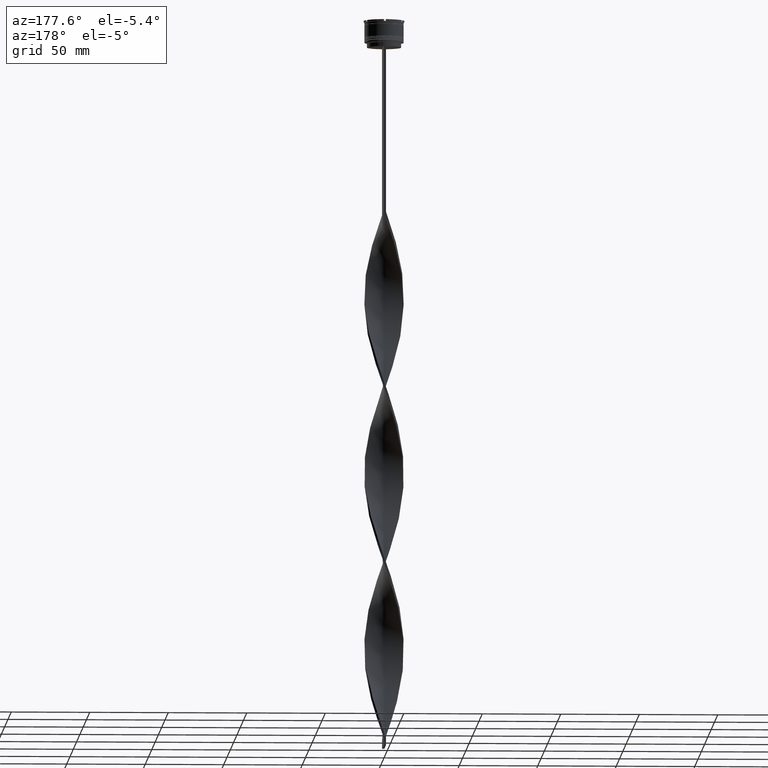
[diagram: clean part render]
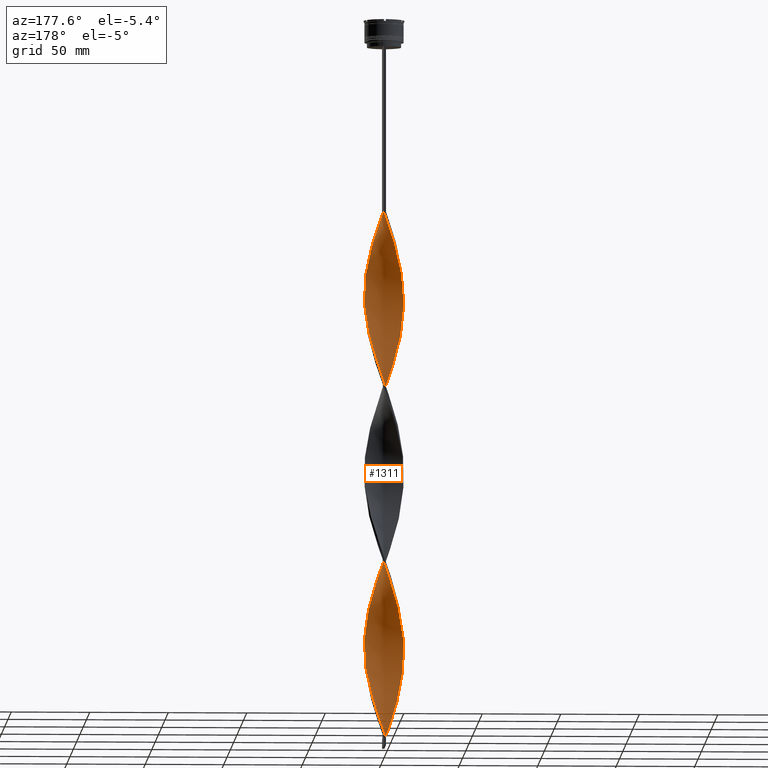
[diagram: same view with one face highlighted and labeled with its STEP entity id]
A machine part, auxiliary view. The second image highlights one B-rep face of the part: STEP entity #1311.
In plain terms, the highlighted face is a freeform B-spline surface patch.
Its self-contained STEP definition (entity closure, byte-faithful):
#4 = CARTESIAN_POINT ( 'NONE',  ( 5.345974020927156012, 11.35936647350535367, -217.1818181818181586 ) ) ;
#23 = CARTESIAN_POINT ( 'NONE',  ( 11.68196120168289553, -4.510463666007692218, -163.7272727272727195 ) ) ;
#50 = CARTESIAN_POINT ( 'NONE',  ( 12.26603189480669798, 2.521301559826762517, -184.0909090909090935 ) ) ;
#63 = CARTESIAN_POINT ( 'NONE',  ( -2.521301559826764294, -12.26603189480669442, -229.9090909090909065 ) ) ;
#78 = CARTESIAN_POINT ( 'NONE',  ( -4.241276690728744470, -11.78236275255014576, -448.8181818181818130 ) ) ;
#86 = CARTESIAN_POINT ( 'NONE',  ( 0.1440176444849607940, -12.55364105866909874, -237.5454545454545325 ) ) ;
#87 = CARTESIAN_POINT ( 'NONE',  ( -0.1440176444849628479, 12.55364105866909874, -125.5454545454545467 ) ) ;
#100 = CARTESIAN_POINT ( 'NONE',  ( 11.68196120168289553, -4.510463666007692218, -387.7272727272727479 ) ) ;
#107 = CARTESIAN_POINT ( 'NONE',  ( 8.752571355081757432, -8.955724128969265507, -148.4545454545454390 ) ) ;
#108 = CARTESIAN_POINT ( 'NONE',  ( -12.00455592986043030, -3.674953311088229313, -191.7272727272727479 ) ) ;
#117 = CARTESIAN_POINT ( 'NONE',  ( -1.929121149525772960, -12.40536724576414684, -339.3636363636362603 ) ) ;
#130 = CARTESIAN_POINT ( 'NONE',  ( 1.929121149525765855, 12.40536724576414862, -227.3636363636363455 ) ) ;
#132 = CARTESIAN_POINT ( 'NONE',  ( -5.874911659039468326, -11.05883868218006505, -219.7272727272727195 ) ) ;
#149 = CARTESIAN_POINT ( 'NONE',  ( -12.00455592986042852, 3.674953311088234642, -278.2727272727271952 ) ) ;
#159 = CARTESIAN_POINT ( 'NONE',  ( 9.581720387053804799, 8.112045323846697187, -201.9090909090909065 ) ) ;
#160 = CARTESIAN_POINT ( 'NONE',  ( -1.929121149525765855, 12.40536724576414862, -130.6363636363636545 ) ) ;
#161 = CARTESIAN_POINT ( 'NONE',  ( -6.908166116216011510, 10.48293307345756809, -145.9090909090909065 ) ) ;
#171 = CARTESIAN_POINT ( 'NONE',  ( -11.47902065681779860, -5.083967906288925143, -303.7272727272727479 ) ) ;
#178 = CARTESIAN_POINT ( 'NONE',  ( -2.802037230306999582, -12.20496158781229035, -336.8181818181818130 ) ) ;
#179 = CARTESIAN_POINT ( 'NONE',  ( -11.68196120168289553, -4.510463666007690442, -418.2727272727273089 ) ) ;
#180 = CARTESIAN_POINT ( 'NONE',  ( 2.521301559826766070, 12.26603189480669442, -341.9090909090909349 ) ) ;
#193 = CARTESIAN_POINT ( 'NONE',  ( 6.665855411790015062, -10.63865670754232795, -364.8181818181818130 ) ) ;
#202 = CARTESIAN_POINT ( 'NONE',  ( 0.1440176444849638193, 12.55364105866909874, -232.4545454545454390 ) ) ;
#203 = CARTESIAN_POINT ( 'NONE',  ( 11.05883868218006505, -5.874911659039469214, -275.7272727272726911 ) ) ;
#206 = CARTESIAN_POINT ( 'NONE',  ( -9.393097386316819453, -8.329727870884724439, -207.0000000000000284 ) ) ;
#217 = EDGE_CURVE ( 'NONE', #3890, #3883, #2850, .T. ) ;
#230 = CARTESIAN_POINT ( 'NONE',  ( -12.44635894133090126, -1.644017644484965901, -293.5454545454545041 ) ) ;
#231 = CARTESIAN_POINT ( 'NONE',  ( -12.26603189480669442, 2.521301559826763850, -397.9090909090909349 ) ) ;
#232 = CARTESIAN_POINT ( 'NONE',  ( -0.1440176444849628479, 12.55364105866909874, -349.5454545454545610 ) ) ;
#252 = CARTESIAN_POINT ( 'NONE',  ( 2.802037230306994253, -12.20496158781229035, -245.1818181818181870 ) ) ;
#272 = CARTESIAN_POINT ( 'NONE',  ( 6.665855411790017726, 10.63865670754232440, -329.1818181818181301 ) ) ;
#285 = CARTESIAN_POINT ( 'NONE',  ( 7.618946993550371971, 9.938015229887190216, -433.5454545454545610 ) ) ;
#294 = CARTESIAN_POINT ( 'NONE',  ( 2.521301559826763850, -12.26603189480669442, -352.0909090909091219 ) ) ;
#295 = CARTESIAN_POINT ( 'NONE',  ( -6.127070068571584649, 10.92114977348146354, -367.3636363636363740 ) ) ;
#304 = CARTESIAN_POINT ( 'NONE',  ( 10.48293307345756809, -6.908166116216013286, -156.0909090909090935 ) ) ;
#311 = CARTESIAN_POINT ( 'NONE',  ( 0.7500000000000002220, 12.50000000000000000, -347.0000000000000000 ) ) ;
#314 = CARTESIAN_POINT ( 'NONE',  ( 8.752571355081757432, -8.955724128969265507, -372.4545454545454959 ) ) ;
#317 = CARTESIAN_POINT ( 'NONE',  ( -5.874911659039468326, -11.05883868218006505, -443.7272727272727479 ) ) ;
#336 = CARTESIAN_POINT ( 'NONE',  ( 9.938015229887190216, 7.618946993550371971, -316.4545454545454390 ) ) ;
#340 = CARTESIAN_POINT ( 'NONE',  ( 7.618946993550371971, 9.938015229887190216, -433.5454545454545610 ) ) ;
#341 = CARTESIAN_POINT ( 'NONE',  ( -3.674953311088230201, 12.00455592986043030, -359.7272727272726911 ) ) ;
#364 = CARTESIAN_POINT ( 'NONE',  ( 8.329727870884726215, 9.393097386316817676, -207.0000000000000284 ) ) ;
#371 = CARTESIAN_POINT ( 'NONE',  ( -11.47902065681779860, 5.083967906288926031, -390.2727272727272521 ) ) ;
#385 = CARTESIAN_POINT ( 'NONE',  ( -6.665855411790016838, -10.63865670754232440, -441.1818181818181301 ) ) ;
#405 = CARTESIAN_POINT ( 'NONE',  ( 7.388950367818355680, -10.11018854729806726, -143.3636363636363740 ) ) ;
#415 = CARTESIAN_POINT ( 'NONE',  ( -3.674953311088230201, 12.00455592986043030, -135.7272727272726911 ) ) ;
#430 = CARTESIAN_POINT ( 'NONE',  ( 4.510463666007690442, 11.68196120168289553, -219.7272727272727195 ) ) ;
#444 = CARTESIAN_POINT ( 'NONE',  ( -12.40536724576414862, -1.929121149525766965, -186.6363636363636260 ) ) ;
#457 = CARTESIAN_POINT ( 'NONE',  ( 12.08570484828248759, 3.398585475168564685, -186.6363636363636260 ) ) ;
#466 = CARTESIAN_POINT ( 'NONE',  ( -5.083967906288923366, -11.47902065681780037, -222.2727272727272805 ) ) ;
#467 = CARTESIAN_POINT ( 'NONE',  ( -4.510463666007691330, 11.68196120168289553, -138.2727272727272805 ) ) ;
#478 = CARTESIAN_POINT ( 'NONE',  ( -0.1440176444849599058, -12.55364105866909874, -344.4545454545453254 ) ) ;
#485 = CARTESIAN_POINT ( 'NONE',  ( -9.581720387053806576, -8.112045323846695410, -313.9090909090908781 ) ) ;
#486 = CARTESIAN_POINT ( 'NONE',  ( -8.752571355081759208, -8.955724128969263731, -209.5454545454545325 ) ) ;
#499 = CARTESIAN_POINT ( 'NONE',  ( -8.329727870884727992, -9.393097386316815900, -319.0000000000000000 ) ) ;
#506 = B_SPLINE_CURVE_WITH_KNOTS ( 'NONE', 3,
 ( #3941, #2571, #4292, #1451 ),
 .UNSPECIFIED., .F., .F.,
 ( 4, 4 ),
 ( 0.000000000000000000, 1.000000000000000000 ),
 .UNSPECIFIED. ) ;
#511 = CARTESIAN_POINT ( 'NONE',  ( -10.63865670754232795, -6.665855411790014173, -308.8181818181817562 ) ) ;
#513 = CARTESIAN_POINT ( 'NONE',  ( 4.510463666007693107, -11.68196120168289553, -250.2727272727273089 ) ) ;
#529 = CARTESIAN_POINT ( 'NONE',  ( -9.581720387053806576, -8.112045323846697187, -313.9090909090908212 ) ) ;
#540 = CARTESIAN_POINT ( 'NONE',  ( -4.510463666007692218, -11.68196120168289553, -331.7272727272727479 ) ) ;
#541 = CARTESIAN_POINT ( 'NONE',  ( 3.398585475168570902, 12.08570484828248581, -339.3636363636362603 ) ) ;
#542 = CARTESIAN_POINT ( 'NONE',  ( -10.63865670754232795, 6.665855411790015062, -161.1818181818181870 ) ) ;
#552 = CARTESIAN_POINT ( 'NONE',  ( -12.20496158781229035, 2.802037230306998694, -280.8181818181818699 ) ) ;
#560 = CARTESIAN_POINT ( 'NONE',  ( 3.674953311088228425, 12.00455592986043207, -222.2727272727272805 ) ) ;
#561 = CARTESIAN_POINT ( 'NONE',  ( -8.329727870884726215, 9.393097386316819453, -374.9999999999999432 ) ) ;
#563 = CARTESIAN_POINT ( 'NONE',  ( 9.938015229887190216, 7.618946993550371971, -316.4545454545454390 ) ) ;
#572 = CARTESIAN_POINT ( 'NONE',  ( 3.398585475168563796, -12.08570484828248759, -354.6363636363635692 ) ) ;
#583 = CARTESIAN_POINT ( 'NONE',  ( -12.20496158781229035, 2.802037230306998694, -280.8181818181818699 ) ) ;
#584 = CARTESIAN_POINT ( 'NONE',  ( 10.92114977348146709, 6.127070068571577544, -311.3636363636363740 ) ) ;
#589 = CARTESIAN_POINT ( 'NONE',  ( 8.752571355081753879, 8.955724128969267284, -321.5454545454545610 ) ) ;
#611 = CARTESIAN_POINT ( 'NONE',  ( 4.510463666007693107, -11.68196120168289553, -250.2727272727273089 ) ) ;
#621 = CARTESIAN_POINT ( 'NONE',  ( 10.63865670754232617, 6.665855411790015950, -420.8181818181818130 ) ) ;
#628 = CARTESIAN_POINT ( 'NONE',  ( 12.44635894133090126, 1.644017644484961904, -405.5454545454545610 ) ) ;
#629 = CARTESIAN_POINT ( 'NONE',  ( 11.05883868218006505, -5.874911659039469214, -275.7272727272726911 ) ) ;
#648 = CARTESIAN_POINT ( 'NONE',  ( 10.11018854729806549, 7.388950367818355680, -423.3636363636363740 ) ) ;
#650 = CARTESIAN_POINT ( 'NONE',  ( 11.68196120168289731, 4.510463666007686889, -306.2727272727272521 ) ) ;
#661 = CARTESIAN_POINT ( 'NONE',  ( 9.938015229887191992, -7.618946993550370195, -153.5454545454545325 ) ) ;
#670 = CARTESIAN_POINT ( 'NONE',  ( -9.581720387053804799, 8.112045323846698963, -380.0909090909090651 ) ) ;
#677 = CARTESIAN_POINT ( 'NONE',  ( -0.7499999999999986677, 12.50000000000000000, -459.0000000000000000 ) ) ;
#679 = CARTESIAN_POINT ( 'NONE',  ( -4.241276690728744470, -11.78236275255014576, -448.8181818181818130 ) ) ;
#687 = CARTESIAN_POINT ( 'NONE',  ( 12.00455592986043030, -3.674953311088231089, -166.2727272727272521 ) ) ;
#693 = CARTESIAN_POINT ( 'NONE',  ( 5.083967906288930472, 11.47902065681779682, -334.2727272727272521 ) ) ;
#696 = CARTESIAN_POINT ( 'NONE',  ( 4.510463666007690442, 11.68196120168289553, -443.7272727272727479 ) ) ;
#699 = CARTESIAN_POINT ( 'NONE',  ( -12.20496158781229035, -2.802037230306997806, -413.1818181818181870 ) ) ;
#715 = CARTESIAN_POINT ( 'NONE',  ( 10.63865670754232617, 6.665855411790015950, -196.8181818181817846 ) ) ;
#722 = CARTESIAN_POINT ( 'NONE',  ( -9.581720387053804799, 8.112045323846697187, -380.0909090909090651 ) ) ;
#742 = CARTESIAN_POINT ( 'NONE',  ( -2.521301559826764294, -12.26603189480669442, -453.9090909090909349 ) ) ;
#768 = CARTESIAN_POINT ( 'NONE',  ( 5.083967906288925143, -11.47902065681779860, -135.7272727272726911 ) ) ;
#775 = CARTESIAN_POINT ( 'NONE',  ( 6.908166116216011510, -10.48293307345756986, -257.9090909090909349 ) ) ;
#788 = CARTESIAN_POINT ( 'NONE',  ( -0.7499999999999986677, 12.50000000000000000, -235.0000000000000000 ) ) ;
#797 = CARTESIAN_POINT ( 'NONE',  ( -9.581720387053804799, 8.112045323846698963, -156.0909090909090935 ) ) ;
#811 = CARTESIAN_POINT ( 'NONE',  ( 12.20496158781229035, -2.802037230306999582, -168.8181818181818130 ) ) ;
#824 = CARTESIAN_POINT ( 'NONE',  ( -10.63865670754232795, 6.665855411790015950, -161.1818181818181870 ) ) ;
#825 = CARTESIAN_POINT ( 'NONE',  ( -11.78236275255014576, 4.241276690728745358, -168.8181818181818130 ) ) ;
#836 = CARTESIAN_POINT ( 'NONE',  ( -2.802037230306999582, -12.20496158781229035, -336.8181818181818130 ) ) ;
#843 = CARTESIAN_POINT ( 'NONE',  ( -11.05883868218006683, -5.874911659039464773, -306.2727272727272521 ) ) ;
#844 = CARTESIAN_POINT ( 'NONE',  ( -12.50000000000000000, 0.7500000000000009992, -179.0000000000000000 ) ) ;
#857 = CARTESIAN_POINT ( 'NONE',  ( 11.78236275255014576, 4.241276690728744470, -413.1818181818181870 ) ) ;
#864 = CARTESIAN_POINT ( 'NONE',  ( -10.92114977348146532, 6.127070068571582873, -270.6363636363636829 ) ) ;
#865 = CARTESIAN_POINT ( 'NONE',  ( -3.398585475168563796, -12.08570484828248759, -227.3636363636363171 ) ) ;
#875 = ORIENTED_EDGE ( 'NONE', *, *, #217, .F. ) ;
#879 = CARTESIAN_POINT ( 'NONE',  ( -10.92114977348146532, 6.127070068571582873, -270.6363636363636829 ) ) ;
#889 = CARTESIAN_POINT ( 'NONE',  ( -6.908166116216016839, -10.48293307345756453, -324.0909090909090651 ) ) ;
#891 = CARTESIAN_POINT ( 'NONE',  ( 10.11018854729806904, -7.388950367818353904, -270.6363636363636829 ) ) ;
#892 = CARTESIAN_POINT ( 'NONE',  ( -8.955724128969265507, 8.752571355081757432, -153.5454545454545325 ) ) ;
#906 = CARTESIAN_POINT ( 'NONE',  ( -11.68196120168289553, 4.510463666007691330, -275.7272727272726911 ) ) ;
#907 = EDGE_CURVE ( 'NONE', #3890, #1246, #1615, .T. ) ;
#916 = CARTESIAN_POINT ( 'NONE',  ( 8.955724128969265507, 8.752571355081755655, -204.4545454545454390 ) ) ;
#917 = CARTESIAN_POINT ( 'NONE',  ( 10.63865670754232440, -6.665855411790017726, -273.1818181818181870 ) ) ;
#918 = CARTESIAN_POINT ( 'NONE',  ( 8.329727870884724439, -9.393097386316819453, -262.9999999999999432 ) ) ;
#926 = CARTESIAN_POINT ( 'NONE',  ( 8.112045323846697187, -9.581720387053804799, -369.9090909090908781 ) ) ;
#935 = CARTESIAN_POINT ( 'NONE',  ( -3.398585475168561576, 12.08570484828248759, -242.6363636363636260 ) ) ;
#936 = CARTESIAN_POINT ( 'NONE',  ( -8.955724128969265507, 8.752571355081757432, -377.5454545454545610 ) ) ;
#937 = CARTESIAN_POINT ( 'NONE',  ( 10.11018854729806904, -7.388950367818353904, -270.6363636363636829 ) ) ;
#956 = CARTESIAN_POINT ( 'NONE',  ( 6.127070068571586425, 10.92114977348146354, -438.6363636363636829 ) ) ;
#959 = CARTESIAN_POINT ( 'NONE',  ( -7.388950367818358345, -10.11018854729806549, -214.6363636363636260 ) ) ;
#982 = CARTESIAN_POINT ( 'NONE',  ( 5.083967906288925143, -11.47902065681779860, -359.7272727272726911 ) ) ;
#983 = CARTESIAN_POINT ( 'NONE',  ( 4.241276690728745358, 11.78236275255014576, -336.8181818181818130 ) ) ;
#1002 = CARTESIAN_POINT ( 'NONE',  ( 2.802037230306997806, 12.20496158781229035, -448.8181818181818130 ) ) ;
#1004 = CARTESIAN_POINT ( 'NONE',  ( 1.929121149525763412, -12.40536724576414862, -242.6363636363636260 ) ) ;
#1013 = CARTESIAN_POINT ( 'NONE',  ( 1.036569397005364879, 12.47950415221662368, -453.9090909090909349 ) ) ;
#1020 = CARTESIAN_POINT ( 'NONE',  ( 2.521301559826766070, 12.26603189480669442, -341.9090909090909349 ) ) ;
#1024 = CARTESIAN_POINT ( 'NONE',  ( 11.35936647350535722, -5.345974020927153347, -385.1818181818181301 ) ) ;
#1037 = CARTESIAN_POINT ( 'NONE',  ( 10.92114977348146354, -6.127070068571585537, -158.6363636363636260 ) ) ;
#1040 = CARTESIAN_POINT ( 'NONE',  ( 10.11018854729806549, 7.388950367818355680, -423.3636363636363740 ) ) ;
#1045 = CARTESIAN_POINT ( 'NONE',  ( -1.929121149525765855, 12.40536724576414862, -354.6363636363635692 ) ) ;
#1052 = CARTESIAN_POINT ( 'NONE',  ( -5.083967906288923366, -11.47902065681780037, -446.2727272727271952 ) ) ;
#1069 = CARTESIAN_POINT ( 'NONE',  ( -8.112045323846698963, -9.581720387053803023, -436.0909090909091219 ) ) ;
#1074 = CARTESIAN_POINT ( 'NONE',  ( -12.00455592986043030, -3.674953311088229313, -415.7272727272726911 ) ) ;
#1090 = CARTESIAN_POINT ( 'NONE',  ( 0.1440176444849638193, 12.55364105866909874, -232.4545454545454390 ) ) ;
#1095 = CARTESIAN_POINT ( 'NONE',  ( -11.68196120168289553, -4.510463666007690442, -418.2727272727273089 ) ) ;
#1114 = CARTESIAN_POINT ( 'NONE',  ( 0.7500000000000002220, -12.50000000000000000, -123.0000000000000000 ) ) ;
#1131 = VERTEX_POINT ( 'NONE', #2070 ) ;
#1136 = CARTESIAN_POINT ( 'NONE',  ( 0.7500000000000002220, -12.50000000000000000, -123.0000000000000000 ) ) ;
#1138 = CARTESIAN_POINT ( 'NONE',  ( 6.127070068571586425, 10.92114977348146354, -214.6363636363636260 ) ) ;
#1146 = CARTESIAN_POINT ( 'NONE',  ( -10.11018854729806549, 7.388950367818356568, -158.6363636363636260 ) ) ;
#1147 = CARTESIAN_POINT ( 'NONE',  ( -12.44635894133090126, 1.644017644484963236, -176.4545454545454390 ) ) ;
#1159 = CARTESIAN_POINT ( 'NONE',  ( -1.644017644484961016, 12.44635894133090126, -237.5454545454545325 ) ) ;
#1168 = CARTESIAN_POINT ( 'NONE',  ( 2.521301559826763850, -12.26603189480669442, -128.0909090909090935 ) ) ;
#1169 = CARTESIAN_POINT ( 'NONE',  ( -11.47902065681779860, 5.083967906288926031, -166.2727272727272236 ) ) ;
#1185 = CARTESIAN_POINT ( 'NONE',  ( 12.00455592986043030, -3.674953311088231089, -390.2727272727272521 ) ) ;
#1196 = CARTESIAN_POINT ( 'NONE',  ( -11.47902065681779860, -5.083967906288925143, -303.7272727272727479 ) ) ;
#1197 = CARTESIAN_POINT ( 'NONE',  ( -12.44635894133090126, 1.644017644484963236, -176.4545454545454390 ) ) ;
#1198 = CARTESIAN_POINT ( 'NONE',  ( -11.68196120168289553, -4.510463666007690442, -194.2727272727272521 ) ) ;
#1212 = CARTESIAN_POINT ( 'NONE',  ( -12.40536724576414684, 1.929121149525772072, -283.3636363636362603 ) ) ;
#1220 = CARTESIAN_POINT ( 'NONE',  ( 11.47902065681779860, 5.083967906288924254, -191.7272727272727479 ) ) ;
#1221 = CARTESIAN_POINT ( 'NONE',  ( -7.618946993550370195, 9.938015229887191992, -148.4545454545454390 ) ) ;
#1234 = CARTESIAN_POINT ( 'NONE',  ( -9.393097386316817676, 8.329727870884726215, -262.9999999999999432 ) ) ;
#1242 = CARTESIAN_POINT ( 'NONE',  ( -6.665855411790015062, 10.63865670754232795, -252.8181818181817846 ) ) ;
#1243 = CARTESIAN_POINT ( 'NONE',  ( -8.955724128969265507, 8.752571355081757432, -153.5454545454545325 ) ) ;
#1246 = VERTEX_POINT ( 'NONE', #3903 ) ;
#1257 = CARTESIAN_POINT ( 'NONE',  ( -8.752571355081755655, 8.955724128969267284, -260.4545454545454959 ) ) ;
#1270 = CARTESIAN_POINT ( 'NONE',  ( 5.345974020927156012, 11.35936647350535367, -217.1818181818181586 ) ) ;
#1272 = CARTESIAN_POINT ( 'NONE',  ( -6.908166116216011510, 10.48293307345756986, -369.9090909090908781 ) ) ;
#1273 = CARTESIAN_POINT ( 'NONE',  ( -1.644017644484964125, -12.44635894133090126, -232.4545454545454390 ) ) ;
#1284 = CARTESIAN_POINT ( 'NONE',  ( 5.083967906288925143, -11.47902065681779860, -359.7272727272726343 ) ) ;
#1293 = CARTESIAN_POINT ( 'NONE',  ( -8.112045323846695410, 9.581720387053804799, -257.9090909090909349 ) ) ;
#1294 = CARTESIAN_POINT ( 'NONE',  ( -4.510463666007691330, 11.68196120168289553, -362.2727272727273089 ) ) ;
#1297 = CARTESIAN_POINT ( 'NONE',  ( 1.644017644484960128, 12.44635894133090126, -344.4545454545453822 ) ) ;
#1305 = CARTESIAN_POINT ( 'NONE',  ( 3.674953311088228425, 12.00455592986043207, -446.2727272727271952 ) ) ;
#1311 = ADVANCED_FACE ( 'NONE', ( #1901 ), #3085, .T. ) ;
#1315 = CARTESIAN_POINT ( 'NONE',  ( 11.78236275255014576, -4.241276690728744470, -280.8181818181818699 ) ) ;
#1338 = CARTESIAN_POINT ( 'NONE',  ( 8.955724128969265507, 8.752571355081755655, -428.4545454545454959 ) ) ;
#1341 = CARTESIAN_POINT ( 'NONE',  ( -3.398585475168564241, -12.08570484828248759, -227.3636363636363455 ) ) ;
#1356 = CARTESIAN_POINT ( 'NONE',  ( 11.05883868218006505, 5.874911659039468326, -418.2727272727273089 ) ) ;
#1366 = CARTESIAN_POINT ( 'NONE',  ( -1.929121149525765855, 12.40536724576414862, -354.6363636363635692 ) ) ;
#1384 = CARTESIAN_POINT ( 'NONE',  ( 8.752571355081753879, 8.955724128969267284, -321.5454545454545610 ) ) ;
#1387 = CARTESIAN_POINT ( 'NONE',  ( 3.398585475168564241, -12.08570484828248759, -354.6363636363635692 ) ) ;
#1388 = CARTESIAN_POINT ( 'NONE',  ( -0.7500000000000017764, -12.50000000000000000, -459.0000000000000000 ) ) ;
#1399 = CARTESIAN_POINT ( 'NONE',  ( 5.345974020927156012, 11.35936647350535367, -441.1818181818181301 ) ) ;
#1403 = CARTESIAN_POINT ( 'NONE',  ( 1.644017644484960128, 12.44635894133090126, -344.4545454545453254 ) ) ;
#1408 = CARTESIAN_POINT ( 'NONE',  ( -12.08570484828248759, 3.398585475168563352, -395.3636363636363171 ) ) ;
#1418 = CARTESIAN_POINT ( 'NONE',  ( 12.55364105866909874, -0.1440176444849629589, -176.4545454545454390 ) ) ;
#1427 = CARTESIAN_POINT ( 'NONE',  ( 12.55364105866909874, -0.1440176444849629589, -176.4545454545454390 ) ) ;
#1436 = CARTESIAN_POINT ( 'NONE',  ( -12.40536724576414862, -1.929121149525766965, -410.6363636363635692 ) ) ;
#1449 = CARTESIAN_POINT ( 'NONE',  ( 3.398585475168563796, -12.08570484828248759, -130.6363636363636545 ) ) ;
#1451 = CARTESIAN_POINT ( 'NONE',  ( -0.7499999999999986677, 12.50000000000000000, -459.0000000000000000 ) ) ;
#1466 = CARTESIAN_POINT ( 'NONE',  ( 12.40536724576414862, -1.929121149525764967, -171.3636363636363171 ) ) ;
#1493 = CARTESIAN_POINT ( 'NONE',  ( 8.955724128969265507, 8.752571355081755655, -204.4545454545454390 ) ) ;
#1504 = CARTESIAN_POINT ( 'NONE',  ( 1.036569397005361992, -12.47950415221662368, -240.0909090909090651 ) ) ;
#1505 = CARTESIAN_POINT ( 'NONE',  ( -11.05883868218006505, 5.874911659039470102, -163.7272727272727195 ) ) ;
#1517 = CARTESIAN_POINT ( 'NONE',  ( 1.036569397005364879, 12.47950415221662368, -229.9090909090909065 ) ) ;
#1538 = CARTESIAN_POINT ( 'NONE',  ( 12.40536724576414862, -1.929121149525764967, -395.3636363636362603 ) ) ;
#1549 = CARTESIAN_POINT ( 'NONE',  ( -4.241276690728744470, -11.78236275255014576, -224.8181818181818130 ) ) ;
#1565 = CARTESIAN_POINT ( 'NONE',  ( 12.47950415221662368, -1.036569397005364435, -397.9090909090909349 ) ) ;
#1569 = CARTESIAN_POINT ( 'NONE',  ( 0.7500000000000002220, -12.50000000000000000, -123.0000000000000000 ) ) ;
#1576 = CARTESIAN_POINT ( 'NONE',  ( 10.63865670754232617, 6.665855411790015062, -196.8181818181818130 ) ) ;
#1578 = CARTESIAN_POINT ( 'NONE',  ( -10.92114977348146354, -6.127070068571584649, -199.3636363636363455 ) ) ;
#1591 = CARTESIAN_POINT ( 'NONE',  ( -11.35936647350535367, 5.345974020927156900, -273.1818181818181870 ) ) ;
#1599 = CARTESIAN_POINT ( 'NONE',  ( -11.35936647350535367, 5.345974020927156900, -273.1818181818181870 ) ) ;
#1600 = CARTESIAN_POINT ( 'NONE',  ( -11.78236275255014576, 4.241276690728745358, -168.8181818181818130 ) ) ;
#1601 = CARTESIAN_POINT ( 'NONE',  ( -7.618946993550370195, 9.938015229887191992, -148.4545454545454390 ) ) ;
#1609 = CARTESIAN_POINT ( 'NONE',  ( -12.44635894133090126, -1.644017644484965679, -293.5454545454544473 ) ) ;
#1615 =( BOUNDED_CURVE ( )  B_SPLINE_CURVE ( 2, ( #3298, #2977, #1168, #4025, #2255, #2815, #4239, #3192, #4598, #3668, #107, #4400, #661, #304, #1037, #2466, #3886, #687, #1765, #2116, #4621, #1418, #4118, #4443, #2670, #3047, #1925, #1220, #4467, #1576, #3341, #159, #916, #1665, #2348, #4140, #3409, #1270, #2699, #560, #3760, #130, #1995, #202, #4047, #2649, #2628, #935, #1642, #3074, #4496, #1242, #4091, #1293, #3006, #4068, #2720, #4422, #864, #1599, #2365, #3779, #583, #1975, #2019, #3436, #3690, #230, #2296, #3714, #3096, #1196, #843, #511, #2276, #485, #1954, #3372, #3027, #889, #2325, #3739, #540, #3388, #178, #1616, #1709, #2126, #3473, #3163, #294, #1387, #3521, #982, #2479, #4227, #2389, #2805, #314, #2107, #4185, #4160, #2413, #1024, #3828, #2428, #2080, #1753, #3847, #3140, #4207, #628, #2739, #4564, #3183, #4539, #2452, #3499, #648, #3542, #1338, #3897, #340, #3872, #956, #3806, #696, #2060, #1002, #1775, #4587, #1731, #677 ),
 .UNSPECIFIED., .F., .T. ) 
 B_SPLINE_CURVE_WITH_KNOTS ( ( 3, 2, 2, 2, 2, 2, 2, 2, 2, 2, 2, 2, 2, 2, 2, 2, 2, 2, 2, 2, 2, 2, 2, 2, 2, 2, 2, 2, 2, 2, 2, 2, 2, 2, 2, 2, 2, 2, 2, 2, 2, 2, 2, 2, 2, 2, 2, 2, 2, 2, 2, 2, 2, 2, 2, 2, 2, 2, 2, 2, 2, 2, 2, 2, 2, 2, 3 ),
 ( 0.000000000000000000, 0.01136363636363636222, 0.02272727272727272443, 0.03409090909090908839, 0.04545454545454544887, 0.05681818181818181629, 0.06818181818181817677, 0.07954545454545454419, 0.09090909090909089774, 0.1022727272727272790, 0.1136363636363636326, 0.1250000000000000000, 0.1363636363636363535, 0.1477272727272727348, 0.1590909090909090884, 0.1704545454545454419, 0.1818181818181817955, 0.1931818181818182045, 0.2045454545454545581, 0.2159090909090909116, 0.2272727272727272652, 0.2386363636363636465, 0.2500000000000000000, 0.2613636363636363535, 0.2727272727272727071, 0.2840909090909091161, 0.2954545454545454697, 0.3068181818181818232, 0.3181818181818181768, 0.3295454545454545303, 0.3409090909090908839, 0.3522727272727272929, 0.3636363636363635909, 0.3750000000000000000, 0.3863636363636364091, 0.3977272727272727071, 0.4090909090909091161, 0.4204545454545454697, 0.4318181818181818232, 0.4431818181818181768, 0.4545454545454545303, 0.4659090909090908839, 0.4772727272727272929, 0.4886363636363635909, 0.5000000000000000000, 0.5113636363636363535, 0.5227272727272727071, 0.5340909090909090606, 0.5454545454545454142, 0.5568181818181817677, 0.5681818181818182323, 0.5795454545454545858, 0.5909090909090909394, 0.6022727272727272929, 0.6136363636363636465, 0.6250000000000000000, 0.6363636363636363535, 0.6477272727272727071, 0.6590909090909090606, 0.6704545454545454142, 0.6818181818181817677, 0.6931818181818182323, 0.7045454545454545858, 0.7159090909090909394, 0.7272727272727271819, 0.7386363636363636465, 0.7500000000000000000 ),
 .UNSPECIFIED. ) 
 CURVE ( )  GEOMETRIC_REPRESENTATION_ITEM ( )  RATIONAL_B_SPLINE_CURVE ( ( 1.000000000000000000, 0.9974521146102535152, 1.000000000000000000, 0.9974521146102535152, 1.000000000000000000, 0.9974521146102535152, 1.000000000000000000, 0.9974521146102535152, 1.000000000000000000, 0.9974521146102535152, 1.000000000000000000, 0.9974521146102535152, 1.000000000000000000, 0.9974521146102535152, 1.000000000000000000, 0.9974521146102535152, 1.000000000000000000, 0.9974521146102535152, 1.000000000000000000, 0.9974521146102535152, 1.000000000000000000, 0.9974521146102535152, 1.000000000000000000, 0.9974521146102535152, 1.000000000000000000, 0.9974521146102535152, 1.000000000000000000, 0.9974521146102535152, 1.000000000000000000, 0.9974521146102535152, 1.000000000000000000, 0.9974521146102535152, 1.000000000000000000, 0.9974521146102535152, 1.000000000000000000, 0.9974521146102535152, 1.000000000000000000, 0.9974521146102535152, 1.000000000000000000, 0.9974521146102535152, 1.000000000000000000, 0.9974521146102535152, 1.000000000000000000, 0.9974521146102535152, 1.000000000000000000, 0.9974521146102535152, 1.000000000000000000, 0.9974521146102535152, 1.000000000000000000, 0.9974521146102535152, 1.000000000000000000, 0.9974521146102535152, 1.000000000000000000, 0.9974521146102535152, 1.000000000000000000, 0.9974521146102535152, 1.000000000000000000, 0.9974521146102535152, 1.000000000000000000, 0.9974521146102535152, 1.000000000000000000, 0.9974521146102535152, 1.000000000000000000, 0.9974521146102535152, 1.000000000000000000, 0.9974521146102535152, 1.000000000000000000, 0.9974521146102535152, 1.000000000000000000, 0.9974521146102535152, 1.000000000000000000, 0.9974521146102535152, 1.000000000000000000, 0.9974521146102535152, 1.000000000000000000, 0.9974521146102535152, 1.000000000000000000, 0.9974521146102535152, 1.000000000000000000, 0.9974521146102535152, 1.000000000000000000, 0.9974521146102535152, 1.000000000000000000, 0.9974521146102535152, 1.000000000000000000, 0.9974521146102535152, 1.000000000000000000, 0.9974521146102535152, 1.000000000000000000, 0.9974521146102535152, 1.000000000000000000, 0.9974521146102535152, 1.000000000000000000, 0.9974521146102535152, 1.000000000000000000, 0.9974521146102535152, 1.000000000000000000, 0.9974521146102535152, 1.000000000000000000, 0.9974521146102535152, 1.000000000000000000, 0.9974521146102535152, 1.000000000000000000, 0.9974521146102535152, 1.000000000000000000, 0.9974521146102535152, 1.000000000000000000, 0.9974521146102535152, 1.000000000000000000, 0.9974521146102535152, 1.000000000000000000, 0.9974521146102535152, 1.000000000000000000, 0.9974521146102535152, 1.000000000000000000, 0.9974521146102535152, 1.000000000000000000, 0.9974521146102535152, 1.000000000000000000, 0.9974521146102535152, 1.000000000000000000, 0.9974521146102535152, 1.000000000000000000, 0.9974521146102535152, 1.000000000000000000, 0.9974521146102535152, 1.000000000000000000, 0.9974521146102535152, 1.000000000000000000, 0.9974521146102535152, 1.000000000000000000, 0.9974521146102535152, 1.000000000000000000 ) ) 
 REPRESENTATION_ITEM ( '' )  );
#1616 = CARTESIAN_POINT ( 'NONE',  ( -1.929121149525772960, -12.40536724576414684, -339.3636363636363171 ) ) ;
#1617 = CARTESIAN_POINT ( 'NONE',  ( -10.48293307345756986, -6.908166116216013286, -425.9090909090908781 ) ) ;
#1619 = CARTESIAN_POINT ( 'NONE',  ( 9.581720387053803023, -8.112045323846697187, -268.0909090909090651 ) ) ;
#1630 = CARTESIAN_POINT ( 'NONE',  ( -11.78236275255014576, -4.241276690728740029, -301.1818181818182438 ) ) ;
#1642 = CARTESIAN_POINT ( 'NONE',  ( -4.241276690728740917, 11.78236275255014576, -245.1818181818181870 ) ) ;
#1644 = CARTESIAN_POINT ( 'NONE',  ( 9.393097386316817676, 8.329727870884722662, -319.0000000000000000 ) ) ;
#1646 = CARTESIAN_POINT ( 'NONE',  ( -5.874911659039468326, -11.05883868218006505, -219.7272727272727195 ) ) ;
#1665 = CARTESIAN_POINT ( 'NONE',  ( 8.329727870884726215, 9.393097386316817676, -207.0000000000000284 ) ) ;
#1666 = CARTESIAN_POINT ( 'NONE',  ( -10.92114977348146354, -6.127070068571584649, -423.3636363636363740 ) ) ;
#1667 = CARTESIAN_POINT ( 'NONE',  ( 12.00455592986043030, 3.674953311088230201, -303.7272727272727479 ) ) ;
#1688 = CARTESIAN_POINT ( 'NONE',  ( 11.35936647350535722, 5.345974020927152459, -308.8181818181817562 ) ) ;
#1709 = CARTESIAN_POINT ( 'NONE',  ( -1.036569397005366655, -12.47950415221662368, -341.9090909090909349 ) ) ;
#1712 = CARTESIAN_POINT ( 'NONE',  ( 10.63865670754232440, -6.665855411790017726, -273.1818181818181870 ) ) ;
#1724 = CARTESIAN_POINT ( 'NONE',  ( 2.802037230306997806, 12.20496158781229035, -448.8181818181818130 ) ) ;
#1731 = CARTESIAN_POINT ( 'NONE',  ( 0.1440176444849638193, 12.55364105866909874, -456.4545454545454390 ) ) ;
#1733 = CARTESIAN_POINT ( 'NONE',  ( -11.05883868218006505, 5.874911659039470102, -387.7272727272727479 ) ) ;
#1750 = CARTESIAN_POINT ( 'NONE',  ( 12.44635894133090126, -1.644017644484959240, -288.4545454545454390 ) ) ;
#1753 = CARTESIAN_POINT ( 'NONE',  ( 12.40536724576414862, -1.929121149525764967, -395.3636363636363171 ) ) ;
#1765 = CARTESIAN_POINT ( 'NONE',  ( 12.20496158781229035, -2.802037230306999582, -168.8181818181818130 ) ) ;
#1771 = CARTESIAN_POINT ( 'NONE',  ( -12.55364105866909874, -0.1440176444849616544, -405.5454545454545610 ) ) ;
#1775 = CARTESIAN_POINT ( 'NONE',  ( 1.929121149525765855, 12.40536724576414862, -451.3636363636364308 ) ) ;
#1777 = CARTESIAN_POINT ( 'NONE',  ( -12.55364105866909874, -0.1440176444849616544, -405.5454545454545610 ) ) ;
#1797 = CARTESIAN_POINT ( 'NONE',  ( 9.393097386316819453, -8.329727870884726215, -150.9999999999999432 ) ) ;
#1820 = CARTESIAN_POINT ( 'NONE',  ( 11.35936647350535722, -5.345974020927153347, -161.1818181818181870 ) ) ;
#1839 = CARTESIAN_POINT ( 'NONE',  ( 8.752571355081757432, -8.955724128969265507, -148.4545454545454390 ) ) ;
#1851 = CARTESIAN_POINT ( 'NONE',  ( -12.00455592986043030, -3.674953311088229313, -191.7272727272727479 ) ) ;
#1869 = CARTESIAN_POINT ( 'NONE',  ( -0.7500000000000017764, -12.50000000000000000, -459.0000000000000000 ) ) ;
#1880 = CARTESIAN_POINT ( 'NONE',  ( -12.47950415221662368, -1.036569397005362880, -184.0909090909090935 ) ) ;
#1892 = CARTESIAN_POINT ( 'NONE',  ( 6.665855411790015062, -10.63865670754232795, -140.8181818181818130 ) ) ;
#1901 = FACE_OUTER_BOUND ( 'NONE', #3426, .T. ) ;
#1915 = CARTESIAN_POINT ( 'NONE',  ( -7.618946993550366642, -9.938015229887193769, -321.5454545454545610 ) ) ;
#1925 = CARTESIAN_POINT ( 'NONE',  ( 11.78236275255014576, 4.241276690728744470, -189.1818181818181870 ) ) ;
#1926 = CARTESIAN_POINT ( 'NONE',  ( -6.665855411790016838, -10.63865670754232440, -217.1818181818181586 ) ) ;
#1941 = CARTESIAN_POINT ( 'NONE',  ( 1.644017644484963236, -12.44635894133090126, -349.5454545454545610 ) ) ;
#1954 = CARTESIAN_POINT ( 'NONE',  ( -8.955724128969263731, -8.752571355081759208, -316.4545454545454390 ) ) ;
#1955 = CARTESIAN_POINT ( 'NONE',  ( -12.40536724576414862, -1.929121149525766965, -186.6363636363636260 ) ) ;
#1966 = CARTESIAN_POINT ( 'NONE',  ( -8.955724128969263731, -8.752571355081759208, -316.4545454545454390 ) ) ;
#1975 = CARTESIAN_POINT ( 'NONE',  ( -12.40536724576414684, 1.929121149525772294, -283.3636363636363171 ) ) ;
#1976 = CARTESIAN_POINT ( 'NONE',  ( -6.127070068571584649, 10.92114977348146354, -367.3636363636363740 ) ) ;
#1987 = CARTESIAN_POINT ( 'NONE',  ( 4.241276690728744470, -11.78236275255014576, -357.1818181818181301 ) ) ;
#1995 = CARTESIAN_POINT ( 'NONE',  ( 1.036569397005364879, 12.47950415221662368, -229.9090909090909065 ) ) ;
#1996 = CARTESIAN_POINT ( 'NONE',  ( -1.036569397005364657, 12.47950415221662368, -352.0909090909091219 ) ) ;
#1997 = CARTESIAN_POINT ( 'NONE',  ( 9.393097386316817676, 8.329727870884722662, -319.0000000000000000 ) ) ;
#1999 = EDGE_CURVE ( 'NONE', #3883, #1131, #2401, .T. ) ;
#2008 = CARTESIAN_POINT ( 'NONE',  ( 11.35936647350535722, -5.345974020927153347, -385.1818181818180733 ) ) ;
#2019 = CARTESIAN_POINT ( 'NONE',  ( -12.47950415221662368, 1.036569397005365545, -285.9090909090908781 ) ) ;
#2021 = CARTESIAN_POINT ( 'NONE',  ( -11.78236275255014576, 4.241276690728745358, -392.8181818181818699 ) ) ;
#2022 = CARTESIAN_POINT ( 'NONE',  ( -10.48293307345756809, -6.908166116216013286, -201.9090909090909065 ) ) ;
#2044 = CARTESIAN_POINT ( 'NONE',  ( 12.26603189480669442, -2.521301559826764738, -285.9090909090908781 ) ) ;
#2060 = CARTESIAN_POINT ( 'NONE',  ( 3.674953311088228425, 12.00455592986043207, -446.2727272727271952 ) ) ;
#2061 = CARTESIAN_POINT ( 'NONE',  ( -9.938015229887191992, -7.618946993550368418, -204.4545454545454390 ) ) ;
#2070 = CARTESIAN_POINT ( 'NONE',  ( -0.7500000000000017764, -12.50000000000000000, -459.0000000000000000 ) ) ;
#2071 = CARTESIAN_POINT ( 'NONE',  ( 8.955724128969265507, 8.752571355081755655, -428.4545454545454959 ) ) ;
#2080 = CARTESIAN_POINT ( 'NONE',  ( 12.20496158781229035, -2.802037230306999582, -392.8181818181818699 ) ) ;
#2085 = CARTESIAN_POINT ( 'NONE',  ( 7.618946993550368418, -9.938015229887193769, -260.4545454545454959 ) ) ;
#2103 = CARTESIAN_POINT ( 'NONE',  ( 12.40536724576414862, 1.929121149525767853, -298.6363636363635692 ) ) ;
#2107 = CARTESIAN_POINT ( 'NONE',  ( 9.393097386316819453, -8.329727870884726215, -374.9999999999999432 ) ) ;
#2108 = CARTESIAN_POINT ( 'NONE',  ( -6.665855411790016838, -10.63865670754232440, -441.1818181818181301 ) ) ;
#2116 = CARTESIAN_POINT ( 'NONE',  ( 12.40536724576414862, -1.929121149525764967, -171.3636363636363171 ) ) ;
#2122 = CARTESIAN_POINT ( 'NONE',  ( 11.47902065681779682, -5.083967906288929584, -278.2727272727271952 ) ) ;
#2126 = CARTESIAN_POINT ( 'NONE',  ( -0.1440176444849599335, -12.55364105866909874, -344.4545454545453822 ) ) ;
#2128 = CARTESIAN_POINT ( 'NONE',  ( -3.398585475168564241, -12.08570484828248759, -451.3636363636364308 ) ) ;
#2141 = CARTESIAN_POINT ( 'NONE',  ( 10.92114977348146354, -6.127070068571585537, -158.6363636363636260 ) ) ;
#2150 = CARTESIAN_POINT ( 'NONE',  ( -11.35936647350535544, -5.345974020927153347, -420.8181818181818130 ) ) ;
#2156 = VECTOR ( 'NONE', #4312, 1000.000000000000000 ) ;
#2171 = CARTESIAN_POINT ( 'NONE',  ( 10.48293307345756986, -6.908166116216013286, -156.0909090909090935 ) ) ;
#2192 = CARTESIAN_POINT ( 'NONE',  ( -9.393097386316819453, -8.329727870884724439, -430.9999999999999432 ) ) ;
#2203 = CARTESIAN_POINT ( 'NONE',  ( 0.7500000000000002220, 12.50000000000000000, -123.0000000000000000 ) ) ;
#2215 = CARTESIAN_POINT ( 'NONE',  ( -3.398585475168561132, 12.08570484828248759, -242.6363636363635976 ) ) ;
#2226 = CARTESIAN_POINT ( 'NONE',  ( -0.1440176444849628479, 12.55364105866909874, -125.5454545454545467 ) ) ;
#2244 = CARTESIAN_POINT ( 'NONE',  ( 4.241276690728744470, -11.78236275255014576, -133.1818181818181870 ) ) ;
#2255 = CARTESIAN_POINT ( 'NONE',  ( 4.241276690728744470, -11.78236275255014576, -133.1818181818181870 ) ) ;
#2256 = CARTESIAN_POINT ( 'NONE',  ( -8.112045323846698963, -9.581720387053803023, -212.0909090909090651 ) ) ;
#2257 = CARTESIAN_POINT ( 'NONE',  ( -12.08570484828248759, 3.398585475168563352, -171.3636363636363171 ) ) ;
#2269 = CARTESIAN_POINT ( 'NONE',  ( 0.7500000000000002220, -12.50000000000000000, -347.0000000000000000 ) ) ;
#2276 = CARTESIAN_POINT ( 'NONE',  ( -10.11018854729807082, -7.388950367818350351, -311.3636363636363740 ) ) ;
#2277 = CARTESIAN_POINT ( 'NONE',  ( -11.68196120168289553, -4.510463666007690442, -194.2727272727272521 ) ) ;
#2289 = CARTESIAN_POINT ( 'NONE',  ( 10.92114977348146354, -6.127070068571585537, -382.6363636363636829 ) ) ;
#2296 = CARTESIAN_POINT ( 'NONE',  ( -12.26603189480669798, -2.521301559826760741, -296.0909090909090651 ) ) ;
#2297 = CARTESIAN_POINT ( 'NONE',  ( -0.7500000000000017764, -12.50000000000000000, -235.0000000000000000 ) ) ;
#2298 = CARTESIAN_POINT ( 'NONE',  ( -5.345974020927152459, 11.35936647350535722, -140.8181818181818130 ) ) ;
#2315 = CARTESIAN_POINT ( 'NONE',  ( 12.55364105866909874, -0.1440176444849629589, -400.4545454545453822 ) ) ;
#2325 = CARTESIAN_POINT ( 'NONE',  ( -6.127070068571582873, -10.92114977348146354, -326.6363636363636260 ) ) ;
#2326 = CARTESIAN_POINT ( 'NONE',  ( -12.20496158781229035, -2.802037230306997806, -413.1818181818181870 ) ) ;
#2334 = ORIENTED_EDGE ( 'NONE', *, *, #3701, .F. ) ;
#2339 = CARTESIAN_POINT ( 'NONE',  ( -12.08570484828248759, -3.398585475168565573, -298.6363636363635692 ) ) ;
#2348 = CARTESIAN_POINT ( 'NONE',  ( 7.618946993550371971, 9.938015229887190216, -209.5454545454545325 ) ) ;
#2349 = CARTESIAN_POINT ( 'NONE',  ( -0.1440176444849628479, 12.55364105866909874, -349.5454545454545610 ) ) ;
#2350 = CARTESIAN_POINT ( 'NONE',  ( -4.241276690728744470, -11.78236275255014576, -224.8181818181818130 ) ) ;
#2357 = CARTESIAN_POINT ( 'NONE',  ( 8.752571355081757432, -8.955724128969265507, -372.4545454545454959 ) ) ;
#2365 = CARTESIAN_POINT ( 'NONE',  ( -11.68196120168289553, 4.510463666007691330, -275.7272727272726911 ) ) ;
#2366 = CARTESIAN_POINT ( 'NONE',  ( -10.11018854729806549, 7.388950367818356568, -382.6363636363636829 ) ) ;
#2368 = CARTESIAN_POINT ( 'NONE',  ( 0.1440176444849607940, -12.55364105866909874, -237.5454545454545325 ) ) ;
#2389 = CARTESIAN_POINT ( 'NONE',  ( 7.388950367818355680, -10.11018854729806726, -367.3636363636363740 ) ) ;
#2392 = CARTESIAN_POINT ( 'NONE',  ( 3.674953311088231089, -12.00455592986043030, -247.7272727272727195 ) ) ;
#2401 =( BOUNDED_CURVE ( )  B_SPLINE_CURVE ( 2, ( #2953, #87, #4403, #4049, #3322, #3741, #467, #2298, #3374, #161, #1601, #4027, #892, #3029, #3648, #542, #1505, #2931, #825, #2257, #4352, #1147, #3672, #3693, #2579, #444, #4376, #108, #1198, #4142, #3049, #2022, #2061, #206, #3117, #3808, #959, #3849, #1646, #4120, #2350, #1341, #4472, #1273, #4209, #2368, #4521, #1004, #252, #2392, #611, #2701, #2414, #3781, #2085, #918, #3474, #1619, #937, #1712, #629, #3763, #1315, #4161, #2044, #2740, #3098, #3142, #3076, #2429, #3456, #1667, #650, #1688, #4541, #2764, #563, #1997, #589, #3412, #3438, #272, #4498, #4188, #983, #3829, #180, #1297, #2722, #232, #4566, #1366, #2786, #341, #3899, #3523, #295, #3165, #3921, #3876, #4295, #722, #4610, #3946, #1733, #371, #3501, #1408, #2878, #3229, #4253, #1777, #4637, #1436, #699, #1074, #1095, #2150, #3207, #3184, #2523, #4589, #2859, #4278, #2500, #2108, #317, #1052, #679, #2128, #3543, #3571, #1388 ),
 .UNSPECIFIED., .F., .T. ) 
 B_SPLINE_CURVE_WITH_KNOTS ( ( 3, 2, 2, 2, 2, 2, 2, 2, 2, 2, 2, 2, 2, 2, 2, 2, 2, 2, 2, 2, 2, 2, 2, 2, 2, 2, 2, 2, 2, 2, 2, 2, 2, 2, 2, 2, 2, 2, 2, 2, 2, 2, 2, 2, 2, 2, 2, 2, 2, 2, 2, 2, 2, 2, 2, 2, 2, 2, 2, 2, 2, 2, 2, 2, 2, 2, 3 ),
 ( 0.000000000000000000, 0.01136363636363636222, 0.02272727272727272443, 0.03409090909090908839, 0.04545454545454544887, 0.05681818181818181629, 0.06818181818181817677, 0.07954545454545454419, 0.09090909090909089774, 0.1022727272727272790, 0.1136363636363636326, 0.1250000000000000000, 0.1363636363636363535, 0.1477272727272727348, 0.1590909090909090884, 0.1704545454545454419, 0.1818181818181817955, 0.1931818181818182045, 0.2045454545454545581, 0.2159090909090909116, 0.2272727272727272652, 0.2386363636363636465, 0.2500000000000000000, 0.2613636363636363535, 0.2727272727272727071, 0.2840909090909091161, 0.2954545454545454697, 0.3068181818181818232, 0.3181818181818181768, 0.3295454545454545303, 0.3409090909090908839, 0.3522727272727272929, 0.3636363636363635909, 0.3750000000000000000, 0.3863636363636364091, 0.3977272727272727071, 0.4090909090909091161, 0.4204545454545454697, 0.4318181818181818232, 0.4431818181818181768, 0.4545454545454545303, 0.4659090909090908839, 0.4772727272727272929, 0.4886363636363635909, 0.5000000000000000000, 0.5113636363636363535, 0.5227272727272727071, 0.5340909090909090606, 0.5454545454545454142, 0.5568181818181817677, 0.5681818181818182323, 0.5795454545454545858, 0.5909090909090909394, 0.6022727272727272929, 0.6136363636363636465, 0.6250000000000000000, 0.6363636363636363535, 0.6477272727272727071, 0.6590909090909090606, 0.6704545454545454142, 0.6818181818181817677, 0.6931818181818182323, 0.7045454545454545858, 0.7159090909090909394, 0.7272727272727271819, 0.7386363636363636465, 0.7500000000000000000 ),
 .UNSPECIFIED. ) 
 CURVE ( )  GEOMETRIC_REPRESENTATION_ITEM ( )  RATIONAL_B_SPLINE_CURVE ( ( 1.000000000000000000, 0.9974521146102535152, 1.000000000000000000, 0.9974521146102535152, 1.000000000000000000, 0.9974521146102535152, 1.000000000000000000, 0.9974521146102535152, 1.000000000000000000, 0.9974521146102535152, 1.000000000000000000, 0.9974521146102535152, 1.000000000000000000, 0.9974521146102535152, 1.000000000000000000, 0.9974521146102535152, 1.000000000000000000, 0.9974521146102535152, 1.000000000000000000, 0.9974521146102535152, 1.000000000000000000, 0.9974521146102535152, 1.000000000000000000, 0.9974521146102535152, 1.000000000000000000, 0.9974521146102535152, 1.000000000000000000, 0.9974521146102535152, 1.000000000000000000, 0.9974521146102535152, 1.000000000000000000, 0.9974521146102535152, 1.000000000000000000, 0.9974521146102535152, 1.000000000000000000, 0.9974521146102535152, 1.000000000000000000, 0.9974521146102535152, 1.000000000000000000, 0.9974521146102535152, 1.000000000000000000, 0.9974521146102535152, 1.000000000000000000, 0.9974521146102535152, 1.000000000000000000, 0.9974521146102535152, 1.000000000000000000, 0.9974521146102535152, 1.000000000000000000, 0.9974521146102535152, 1.000000000000000000, 0.9974521146102535152, 1.000000000000000000, 0.9974521146102535152, 1.000000000000000000, 0.9974521146102535152, 1.000000000000000000, 0.9974521146102535152, 1.000000000000000000, 0.9974521146102535152, 1.000000000000000000, 0.9974521146102535152, 1.000000000000000000, 0.9974521146102535152, 1.000000000000000000, 0.9974521146102535152, 1.000000000000000000, 0.9974521146102535152, 1.000000000000000000, 0.9974521146102535152, 1.000000000000000000, 0.9974521146102535152, 1.000000000000000000, 0.9974521146102535152, 1.000000000000000000, 0.9974521146102535152, 1.000000000000000000, 0.9974521146102535152, 1.000000000000000000, 0.9974521146102535152, 1.000000000000000000, 0.9974521146102535152, 1.000000000000000000, 0.9974521146102535152, 1.000000000000000000, 0.9974521146102535152, 1.000000000000000000, 0.9974521146102535152, 1.000000000000000000, 0.9974521146102535152, 1.000000000000000000, 0.9974521146102535152, 1.000000000000000000, 0.9974521146102535152, 1.000000000000000000, 0.9974521146102535152, 1.000000000000000000, 0.9974521146102535152, 1.000000000000000000, 0.9974521146102535152, 1.000000000000000000, 0.9974521146102535152, 1.000000000000000000, 0.9974521146102535152, 1.000000000000000000, 0.9974521146102535152, 1.000000000000000000, 0.9974521146102535152, 1.000000000000000000, 0.9974521146102535152, 1.000000000000000000, 0.9974521146102535152, 1.000000000000000000, 0.9974521146102535152, 1.000000000000000000, 0.9974521146102535152, 1.000000000000000000, 0.9974521146102535152, 1.000000000000000000, 0.9974521146102535152, 1.000000000000000000, 0.9974521146102535152, 1.000000000000000000, 0.9974521146102535152, 1.000000000000000000, 0.9974521146102535152, 1.000000000000000000, 0.9974521146102535152, 1.000000000000000000, 0.9974521146102535152, 1.000000000000000000, 0.9974521146102535152, 1.000000000000000000 ) ) 
 REPRESENTATION_ITEM ( '' )  );
#2406 = CARTESIAN_POINT ( 'NONE',  ( 9.581720387053804799, 8.112045323846698963, -425.9090909090908781 ) ) ;
#2413 = CARTESIAN_POINT ( 'NONE',  ( 10.92114977348146354, -6.127070068571585537, -382.6363636363636829 ) ) ;
#2414 = CARTESIAN_POINT ( 'NONE',  ( 6.127070068571584649, -10.92114977348146354, -255.3636363636363455 ) ) ;
#2428 = CARTESIAN_POINT ( 'NONE',  ( 12.00455592986043030, -3.674953311088231089, -390.2727272727272521 ) ) ;
#2429 = CARTESIAN_POINT ( 'NONE',  ( 12.40536724576414862, 1.929121149525767853, -298.6363636363635692 ) ) ;
#2440 = CARTESIAN_POINT ( 'NONE',  ( 6.908166116216014174, 10.48293307345756809, -436.0909090909091219 ) ) ;
#2446 = CARTESIAN_POINT ( 'NONE',  ( 4.241276690728745358, 11.78236275255014576, -336.8181818181818130 ) ) ;
#2452 = CARTESIAN_POINT ( 'NONE',  ( 11.05883868218006505, 5.874911659039468326, -418.2727272727273089 ) ) ;
#2466 = CARTESIAN_POINT ( 'NONE',  ( 11.35936647350535722, -5.345974020927153347, -161.1818181818181870 ) ) ;
#2474 = CARTESIAN_POINT ( 'NONE',  ( -2.802037230306997806, 12.20496158781229035, -357.1818181818181301 ) ) ;
#2479 = CARTESIAN_POINT ( 'NONE',  ( 5.874911659039469214, -11.05883868218006505, -362.2727272727273089 ) ) ;
#2495 = CARTESIAN_POINT ( 'NONE',  ( 11.78236275255014576, 4.241276690728744470, -189.1818181818181870 ) ) ;
#2500 = CARTESIAN_POINT ( 'NONE',  ( -7.388950367818358345, -10.11018854729806549, -438.6363636363636829 ) ) ;
#2515 = CARTESIAN_POINT ( 'NONE',  ( -5.874911659039470990, 11.05883868218006505, -250.2727272727273089 ) ) ;
#2523 = CARTESIAN_POINT ( 'NONE',  ( -9.938015229887191992, -7.618946993550368418, -428.4545454545454959 ) ) ;
#2545 = CARTESIAN_POINT ( 'NONE',  ( 8.112045323846697187, -9.581720387053804799, -145.9090909090909065 ) ) ;
#2566 = CARTESIAN_POINT ( 'NONE',  ( 11.47902065681779860, 5.083967906288924254, -191.7272727272727479 ) ) ;
#2571 = CARTESIAN_POINT ( 'NONE',  ( -0.7500000000000007772, -4.166666666666667851, -459.0000000000000000 ) ) ;
#2578 = CARTESIAN_POINT ( 'NONE',  ( -7.388950367818358345, -10.11018854729806549, -214.6363636363636260 ) ) ;
#2579 = CARTESIAN_POINT ( 'NONE',  ( -12.47950415221662368, -1.036569397005362880, -184.0909090909090935 ) ) ;
#2590 = CARTESIAN_POINT ( 'NONE',  ( -4.241276690728740917, 11.78236275255014576, -245.1818181818181870 ) ) ;
#2601 = CARTESIAN_POINT ( 'NONE',  ( -12.08570484828248759, 3.398585475168562908, -171.3636363636363171 ) ) ;
#2617 = CARTESIAN_POINT ( 'NONE',  ( -12.26603189480669798, -2.521301559826760741, -296.0909090909090651 ) ) ;
#2628 = CARTESIAN_POINT ( 'NONE',  ( -2.521301559826761629, 12.26603189480669798, -240.0909090909090651 ) ) ;
#2629 = CARTESIAN_POINT ( 'NONE',  ( -12.26603189480669442, 2.521301559826763850, -173.9090909090909065 ) ) ;
#2641 = CARTESIAN_POINT ( 'NONE',  ( 12.26603189480669798, 2.521301559826762517, -408.0909090909091219 ) ) ;
#2649 = CARTESIAN_POINT ( 'NONE',  ( -1.644017644484961016, 12.44635894133090126, -237.5454545454545325 ) ) ;
#2650 = CARTESIAN_POINT ( 'NONE',  ( -12.55364105866909874, -0.1440176444849616544, -181.5454545454545041 ) ) ;
#2663 = CARTESIAN_POINT ( 'NONE',  ( 9.393097386316819453, -8.329727870884726215, -374.9999999999999432 ) ) ;
#2670 = CARTESIAN_POINT ( 'NONE',  ( 12.26603189480669798, 2.521301559826762517, -184.0909090909090935 ) ) ;
#2671 = CARTESIAN_POINT ( 'NONE',  ( -12.44635894133090126, 1.644017644484963236, -400.4545454545453822 ) ) ;
#2689 = CARTESIAN_POINT ( 'NONE',  ( -6.908166116216016839, -10.48293307345756631, -324.0909090909090082 ) ) ;
#2699 = CARTESIAN_POINT ( 'NONE',  ( 4.510463666007690442, 11.68196120168289553, -219.7272727272727195 ) ) ;
#2700 = CARTESIAN_POINT ( 'NONE',  ( -9.938015229887191992, -7.618946993550368418, -428.4545454545454959 ) ) ;
#2701 = CARTESIAN_POINT ( 'NONE',  ( 5.345974020927153347, -11.35936647350535722, -252.8181818181817846 ) ) ;
#2710 = CARTESIAN_POINT ( 'NONE',  ( 7.388950367818355680, -10.11018854729806726, -367.3636363636363740 ) ) ;
#2720 = CARTESIAN_POINT ( 'NONE',  ( -9.938015229887190216, 7.618946993550371971, -265.5454545454545041 ) ) ;
#2721 = CARTESIAN_POINT ( 'NONE',  ( 12.55364105866909874, 0.1440176444849655957, -293.5454545454544473 ) ) ;
#2722 = CARTESIAN_POINT ( 'NONE',  ( 0.7500000000000002220, 12.50000000000000000, -347.0000000000000000 ) ) ;
#2739 = CARTESIAN_POINT ( 'NONE',  ( 12.26603189480669798, 2.521301559826762517, -408.0909090909091219 ) ) ;
#2740 = CARTESIAN_POINT ( 'NONE',  ( 12.44635894133090126, -1.644017644484959240, -288.4545454545454390 ) ) ;
#2750 = CARTESIAN_POINT ( 'NONE',  ( -0.7499999999999986677, 12.50000000000000000, -459.0000000000000000 ) ) ;
#2764 = CARTESIAN_POINT ( 'NONE',  ( 10.48293307345756986, 6.908166116216011510, -313.9090909090908781 ) ) ;
#2786 = CARTESIAN_POINT ( 'NONE',  ( -2.802037230306997806, 12.20496158781229035, -357.1818181818181301 ) ) ;
#2802 = CARTESIAN_POINT ( 'NONE',  ( -3.674953311088230201, 12.00455592986043030, -359.7272727272726343 ) ) ;
#2805 = CARTESIAN_POINT ( 'NONE',  ( 8.112045323846695410, -9.581720387053804799, -369.9090909090909349 ) ) ;
#2815 = CARTESIAN_POINT ( 'NONE',  ( 5.083967906288925143, -11.47902065681779860, -135.7272727272726911 ) ) ;
#2823 = CARTESIAN_POINT ( 'NONE',  ( -11.05883868218006505, 5.874911659039470102, -387.7272727272727479 ) ) ;
#2850 = LINE ( 'NONE', #1136, #2156 ) ;
#2853 = CARTESIAN_POINT ( 'NONE',  ( -3.398585475168563796, -12.08570484828248759, -451.3636363636364877 ) ) ;
#2859 = CARTESIAN_POINT ( 'NONE',  ( -8.752571355081759208, -8.955724128969263731, -433.5454545454545610 ) ) ;
#2873 = CARTESIAN_POINT ( 'NONE',  ( 2.802037230306997806, 12.20496158781229035, -224.8181818181818130 ) ) ;
#2878 = CARTESIAN_POINT ( 'NONE',  ( -12.26603189480669442, 2.521301559826763850, -397.9090909090909349 ) ) ;
#2893 = CARTESIAN_POINT ( 'NONE',  ( 5.874911659039469214, -11.05883868218006505, -138.2727272727272805 ) ) ;
#2922 = CARTESIAN_POINT ( 'NONE',  ( 7.618946993550371971, 9.938015229887190216, -209.5454545454545325 ) ) ;
#2930 = CARTESIAN_POINT ( 'NONE',  ( 8.955724128969263731, -8.752571355081759208, -265.5454545454545041 ) ) ;
#2931 = CARTESIAN_POINT ( 'NONE',  ( -11.47902065681779860, 5.083967906288926031, -166.2727272727272521 ) ) ;
#2943 = CARTESIAN_POINT ( 'NONE',  ( -1.644017644484964125, -12.44635894133090126, -456.4545454545454959 ) ) ;
#2952 = CARTESIAN_POINT ( 'NONE',  ( -1.036569397005364657, 12.47950415221662368, -128.0909090909090935 ) ) ;
#2953 = CARTESIAN_POINT ( 'NONE',  ( 0.7500000000000002220, 12.50000000000000000, -123.0000000000000000 ) ) ;
#2966 = CARTESIAN_POINT ( 'NONE',  ( 9.938015229887191992, -7.618946993550370195, -377.5454545454545610 ) ) ;
#2977 = CARTESIAN_POINT ( 'NONE',  ( 1.644017644484963236, -12.44635894133090126, -125.5454545454545467 ) ) ;
#2978 = CARTESIAN_POINT ( 'NONE',  ( 1.929121149525763190, -12.40536724576414862, -242.6363636363635976 ) ) ;
#2994 = CARTESIAN_POINT ( 'NONE',  ( 10.48293307345756986, -6.908166116216013286, -380.0909090909090651 ) ) ;
#3006 = CARTESIAN_POINT ( 'NONE',  ( -8.752571355081755655, 8.955724128969267284, -260.4545454545454959 ) ) ;
#3007 = CARTESIAN_POINT ( 'NONE',  ( -5.345974020927152459, 11.35936647350535722, -140.8181818181818130 ) ) ;
#3017 = CARTESIAN_POINT ( 'NONE',  ( -5.345974020927156900, -11.35936647350535367, -329.1818181818180733 ) ) ;
#3027 = CARTESIAN_POINT ( 'NONE',  ( -7.618946993550366642, -9.938015229887193769, -321.5454545454545610 ) ) ;
#3028 = CARTESIAN_POINT ( 'NONE',  ( 5.345974020927153347, -11.35936647350535722, -252.8181818181817562 ) ) ;
#3029 = CARTESIAN_POINT ( 'NONE',  ( -9.581720387053804799, 8.112045323846697187, -156.0909090909090935 ) ) ;
#3040 = CARTESIAN_POINT ( 'NONE',  ( -6.127070068571582873, -10.92114977348146354, -326.6363636363636260 ) ) ;
#3047 = CARTESIAN_POINT ( 'NONE',  ( 12.08570484828248759, 3.398585475168565129, -186.6363636363636260 ) ) ;
#3048 = CARTESIAN_POINT ( 'NONE',  ( 12.50000000000000000, -0.7500000000000025535, -291.0000000000000568 ) ) ;
#3049 = CARTESIAN_POINT ( 'NONE',  ( -10.92114977348146354, -6.127070068571584649, -199.3636363636363455 ) ) ;
#3064 = CARTESIAN_POINT ( 'NONE',  ( -10.48293307345756809, 6.908166116216014174, -268.0909090909090082 ) ) ;
#3074 = CARTESIAN_POINT ( 'NONE',  ( -5.083967906288926031, 11.47902065681779860, -247.7272727272727195 ) ) ;
#3075 = CARTESIAN_POINT ( 'NONE',  ( 12.26603189480669442, -2.521301559826764738, -285.9090909090908781 ) ) ;
#3076 = CARTESIAN_POINT ( 'NONE',  ( 12.47950415221662368, 1.036569397005361104, -296.0909090909090651 ) ) ;
#3085 =( BOUNDED_SURFACE ( )  B_SPLINE_SURFACE ( 1, 2, ( 
 ( #2203, #2226, #2952, #160, #4402, #415, #4375, #3007, #4351, #4026, #1221, #3342, #1243, #797, #1146, #824, #3321, #1169, #1600, #2601, #2629, #1197, #844, #2650, #1880, #1955, #3692, #1851, #2277, #4069, #1578, #3647, #3300, #4048, #486, #2256, #2578, #1926, #132, #466, #1549, #865, #63, #4003, #2297, #86, #1504, #2978, #3715, #4444, #513, #3028, #3976, #775, #3618, #3276, #2930, #3780, #891, #917, #203, #2122, #3160, #3740, #3075, #1750, #3048, #2721, #3180, #2103, #4630, #4119, #4468, #4141, #584, #4497, #336, #1644, #1384, #4584, #4224, #4604, #3761, #693, #2446, #541, #1020, #1403, #311, #2349, #1996, #1045, #2474, #2802, #1294, #3868, #1976, #1272, #3410, #561, #936, #670, #2366, #3518, #2823, #3539, #2021, #4247, #231, #2671, #3893, #1771, #3200, #4092, #2326, #3389, #179, #3437, #1666, #1617, #2700, #2192, #3609, #1069, #3631, #385, #3313, #4271, #78, #2853, #742, #2943, #1869 ),
 ( #1114, #4315, #4367, #1449, #2244, #768, #2893, #1892, #405, #2545, #1839, #1797, #3223, #2171, #2141, #1820, #23, #3241, #811, #1466, #3967, #1427, #3263, #3661, #50, #457, #2495, #2566, #3915, #715, #3560, #3587, #1493, #364, #2922, #4343, #1138, #4, #430, #3991, #2873, #4289, #1517, #1090, #788, #1159, #3291, #2215, #2590, #4012, #2515, #3938, #3380, #4487, #1257, #1234, #4414, #3064, #879, #1591, #906, #149, #552, #1212, #3705, #3772, #3360, #1609, #2617, #2339, #1630, #171, #4129, #4388, #3332, #529, #1966, #499, #1915, #2689, #3040, #3017, #4436, #4458, #836, #117, #4110, #478, #2269, #1941, #3752, #572, #1987, #1284, #3403, #193, #2710, #926, #2357, #2663, #2966, #2994, #2289, #2008, #100, #1185, #4082, #1538, #1565, #2315, #4039, #3683, #2641, #4061, #857, #3728, #1356, #621, #1040, #2406, #2071, #3837, #285, #2440, #4530, #1399, #3156, #1305, #1724, #3860, #1013, #3107, #2750 ) ),
 .UNSPECIFIED., .F., .F., .F. ) 
 B_SPLINE_SURFACE_WITH_KNOTS ( ( 2, 2 ),
 ( 3, 2, 2, 2, 2, 2, 2, 2, 2, 2, 2, 2, 2, 2, 2, 2, 2, 2, 2, 2, 2, 2, 2, 2, 2, 2, 2, 2, 2, 2, 2, 2, 2, 2, 2, 2, 2, 2, 2, 2, 2, 2, 2, 2, 2, 2, 2, 2, 2, 2, 2, 2, 2, 2, 2, 2, 2, 2, 2, 2, 2, 2, 2, 2, 2, 2, 3 ),
 ( 0.000000000000000000, 1.000000000000000000 ),
 ( 0.000000000000000000, 0.01136363636363636395, 0.02272727272727272790, 0.03409090909090908839, 0.04545454545454545581, 0.05681818181818181629, 0.06818181818181817677, 0.07954545454545454419, 0.09090909090909091161, 0.1022727272727272790, 0.1136363636363636326, 0.1250000000000000000, 0.1363636363636363535, 0.1477272727272727348, 0.1590909090909090884, 0.1704545454545454419, 0.1818181818181818232, 0.1931818181818181768, 0.2045454545454545581, 0.2159090909090909116, 0.2272727272727272652, 0.2386363636363636465, 0.2500000000000000000, 0.2613636363636363535, 0.2727272727272727071, 0.2840909090909091161, 0.2954545454545454697, 0.3068181818181818232, 0.3181818181818181768, 0.3295454545454545303, 0.3409090909090908839, 0.3522727272727272929, 0.3636363636363636465, 0.3750000000000000000, 0.3863636363636363535, 0.3977272727272727071, 0.4090909090909091161, 0.4204545454545454697, 0.4318181818181818232, 0.4431818181818181768, 0.4545454545454545303, 0.4659090909090908839, 0.4772727272727272929, 0.4886363636363636465, 0.5000000000000000000, 0.5113636363636363535, 0.5227272727272727071, 0.5340909090909090606, 0.5454545454545454142, 0.5568181818181817677, 0.5681818181818182323, 0.5795454545454545858, 0.5909090909090909394, 0.6022727272727272929, 0.6136363636363636465, 0.6250000000000000000, 0.6363636363636363535, 0.6477272727272727071, 0.6590909090909090606, 0.6704545454545454142, 0.6818181818181817677, 0.6931818181818182323, 0.7045454545454545858, 0.7159090909090909394, 0.7272727272727272929, 0.7386363636363636465, 0.7500000000000000000 ),
 .UNSPECIFIED. ) 
 GEOMETRIC_REPRESENTATION_ITEM ( )  RATIONAL_B_SPLINE_SURFACE ( (
 ( 1.000000000000000000, 0.9974521146102535152, 1.000000000000000000, 0.9974521146102535152, 1.000000000000000000, 0.9974521146102535152, 1.000000000000000000, 0.9974521146102535152, 1.000000000000000000, 0.9974521146102535152, 1.000000000000000000, 0.9974521146102535152, 1.000000000000000000, 0.9974521146102535152, 1.000000000000000000, 0.9974521146102535152, 1.000000000000000000, 0.9974521146102535152, 1.000000000000000000, 0.9974521146102535152, 1.000000000000000000, 0.9974521146102535152, 1.000000000000000000, 0.9974521146102535152, 1.000000000000000000, 0.9974521146102535152, 1.000000000000000000, 0.9974521146102535152, 1.000000000000000000, 0.9974521146102535152, 1.000000000000000000, 0.9974521146102535152, 1.000000000000000000, 0.9974521146102535152, 1.000000000000000000, 0.9974521146102535152, 1.000000000000000000, 0.9974521146102535152, 1.000000000000000000, 0.9974521146102535152, 1.000000000000000000, 0.9974521146102535152, 1.000000000000000000, 0.9974521146102535152, 1.000000000000000000, 0.9974521146102535152, 1.000000000000000000, 0.9974521146102535152, 1.000000000000000000, 0.9974521146102535152, 1.000000000000000000, 0.9974521146102535152, 1.000000000000000000, 0.9974521146102535152, 1.000000000000000000, 0.9974521146102535152, 1.000000000000000000, 0.9974521146102535152, 1.000000000000000000, 0.9974521146102535152, 1.000000000000000000, 0.9974521146102535152, 1.000000000000000000, 0.9974521146102535152, 1.000000000000000000, 0.9974521146102535152, 1.000000000000000000, 0.9974521146102535152, 1.000000000000000000, 0.9974521146102535152, 1.000000000000000000, 0.9974521146102535152, 1.000000000000000000, 0.9974521146102535152, 1.000000000000000000, 0.9974521146102535152, 1.000000000000000000, 0.9974521146102535152, 1.000000000000000000, 0.9974521146102535152, 1.000000000000000000, 0.9974521146102535152, 1.000000000000000000, 0.9974521146102535152, 1.000000000000000000, 0.9974521146102535152, 1.000000000000000000, 0.9974521146102535152, 1.000000000000000000, 0.9974521146102535152, 1.000000000000000000, 0.9974521146102535152, 1.000000000000000000, 0.9974521146102535152, 1.000000000000000000, 0.9974521146102535152, 1.000000000000000000, 0.9974521146102535152, 1.000000000000000000, 0.9974521146102535152, 1.000000000000000000, 0.9974521146102535152, 1.000000000000000000, 0.9974521146102535152, 1.000000000000000000, 0.9974521146102535152, 1.000000000000000000, 0.9974521146102535152, 1.000000000000000000, 0.9974521146102535152, 1.000000000000000000, 0.9974521146102535152, 1.000000000000000000, 0.9974521146102535152, 1.000000000000000000, 0.9974521146102535152, 1.000000000000000000, 0.9974521146102535152, 1.000000000000000000, 0.9974521146102535152, 1.000000000000000000, 0.9974521146102535152, 1.000000000000000000, 0.9974521146102535152, 1.000000000000000000, 0.9974521146102535152, 1.000000000000000000, 0.9974521146102535152, 1.000000000000000000, 0.9974521146102535152, 1.000000000000000000, 0.9974521146102535152, 1.000000000000000000),
 ( 1.000000000000000000, 0.9974521146102535152, 1.000000000000000000, 0.9974521146102535152, 1.000000000000000000, 0.9974521146102535152, 1.000000000000000000, 0.9974521146102535152, 1.000000000000000000, 0.9974521146102535152, 1.000000000000000000, 0.9974521146102535152, 1.000000000000000000, 0.9974521146102535152, 1.000000000000000000, 0.9974521146102535152, 1.000000000000000000, 0.9974521146102535152, 1.000000000000000000, 0.9974521146102535152, 1.000000000000000000, 0.9974521146102535152, 1.000000000000000000, 0.9974521146102535152, 1.000000000000000000, 0.9974521146102535152, 1.000000000000000000, 0.9974521146102535152, 1.000000000000000000, 0.9974521146102535152, 1.000000000000000000, 0.9974521146102535152, 1.000000000000000000, 0.9974521146102535152, 1.000000000000000000, 0.9974521146102535152, 1.000000000000000000, 0.9974521146102535152, 1.000000000000000000, 0.9974521146102535152, 1.000000000000000000, 0.9974521146102535152, 1.000000000000000000, 0.9974521146102535152, 1.000000000000000000, 0.9974521146102535152, 1.000000000000000000, 0.9974521146102535152, 1.000000000000000000, 0.9974521146102535152, 1.000000000000000000, 0.9974521146102535152, 1.000000000000000000, 0.9974521146102535152, 1.000000000000000000, 0.9974521146102535152, 1.000000000000000000, 0.9974521146102535152, 1.000000000000000000, 0.9974521146102535152, 1.000000000000000000, 0.9974521146102535152, 1.000000000000000000, 0.9974521146102535152, 1.000000000000000000, 0.9974521146102535152, 1.000000000000000000, 0.9974521146102535152, 1.000000000000000000, 0.9974521146102535152, 1.000000000000000000, 0.9974521146102535152, 1.000000000000000000, 0.9974521146102535152, 1.000000000000000000, 0.9974521146102535152, 1.000000000000000000, 0.9974521146102535152, 1.000000000000000000, 0.9974521146102535152, 1.000000000000000000, 0.9974521146102535152, 1.000000000000000000, 0.9974521146102535152, 1.000000000000000000, 0.9974521146102535152, 1.000000000000000000, 0.9974521146102535152, 1.000000000000000000, 0.9974521146102535152, 1.000000000000000000, 0.9974521146102535152, 1.000000000000000000, 0.9974521146102535152, 1.000000000000000000, 0.9974521146102535152, 1.000000000000000000, 0.9974521146102535152, 1.000000000000000000, 0.9974521146102535152, 1.000000000000000000, 0.9974521146102535152, 1.000000000000000000, 0.9974521146102535152, 1.000000000000000000, 0.9974521146102535152, 1.000000000000000000, 0.9974521146102535152, 1.000000000000000000, 0.9974521146102535152, 1.000000000000000000, 0.9974521146102535152, 1.000000000000000000, 0.9974521146102535152, 1.000000000000000000, 0.9974521146102535152, 1.000000000000000000, 0.9974521146102535152, 1.000000000000000000, 0.9974521146102535152, 1.000000000000000000, 0.9974521146102535152, 1.000000000000000000, 0.9974521146102535152, 1.000000000000000000, 0.9974521146102535152, 1.000000000000000000, 0.9974521146102535152, 1.000000000000000000, 0.9974521146102535152, 1.000000000000000000, 0.9974521146102535152, 1.000000000000000000) ) ) 
 REPRESENTATION_ITEM ( '' )  SURFACE ( )  );
#3096 = CARTESIAN_POINT ( 'NONE',  ( -11.78236275255014576, -4.241276690728740029, -301.1818181818182438 ) ) ;
#3098 = CARTESIAN_POINT ( 'NONE',  ( 12.50000000000000000, -0.7500000000000025535, -291.0000000000000568 ) ) ;
#3107 = CARTESIAN_POINT ( 'NONE',  ( 0.1440176444849638193, 12.55364105866909874, -456.4545454545454959 ) ) ;
#3117 = CARTESIAN_POINT ( 'NONE',  ( -8.752571355081759208, -8.955724128969263731, -209.5454545454545325 ) ) ;
#3140 = CARTESIAN_POINT ( 'NONE',  ( 12.55364105866909874, -0.1440176444849629589, -400.4545454545453822 ) ) ;
#3142 = CARTESIAN_POINT ( 'NONE',  ( 12.55364105866909874, 0.1440176444849655957, -293.5454545454545041 ) ) ;
#3156 = CARTESIAN_POINT ( 'NONE',  ( 4.510463666007690442, 11.68196120168289553, -443.7272727272727479 ) ) ;
#3160 = CARTESIAN_POINT ( 'NONE',  ( 11.78236275255014576, -4.241276690728744470, -280.8181818181818699 ) ) ;
#3163 = CARTESIAN_POINT ( 'NONE',  ( 1.644017644484963236, -12.44635894133090126, -349.5454545454545610 ) ) ;
#3165 = CARTESIAN_POINT ( 'NONE',  ( -6.908166116216011510, 10.48293307345756809, -369.9090909090909349 ) ) ;
#3180 = CARTESIAN_POINT ( 'NONE',  ( 12.47950415221662368, 1.036569397005361104, -296.0909090909090651 ) ) ;
#3183 = CARTESIAN_POINT ( 'NONE',  ( 11.78236275255014576, 4.241276690728744470, -413.1818181818181870 ) ) ;
#3184 = CARTESIAN_POINT ( 'NONE',  ( -10.48293307345756809, -6.908166116216013286, -425.9090909090908212 ) ) ;
#3192 = CARTESIAN_POINT ( 'NONE',  ( 6.665855411790014173, -10.63865670754232795, -140.8181818181818130 ) ) ;
#3200 = CARTESIAN_POINT ( 'NONE',  ( -12.47950415221662368, -1.036569397005362880, -408.0909090909091219 ) ) ;
#3207 = CARTESIAN_POINT ( 'NONE',  ( -10.92114977348146354, -6.127070068571584649, -423.3636363636363740 ) ) ;
#3223 = CARTESIAN_POINT ( 'NONE',  ( 9.938015229887191992, -7.618946993550370195, -153.5454545454545325 ) ) ;
#3229 = CARTESIAN_POINT ( 'NONE',  ( -12.44635894133090126, 1.644017644484963236, -400.4545454545453822 ) ) ;
#3241 = CARTESIAN_POINT ( 'NONE',  ( 12.00455592986043030, -3.674953311088231089, -166.2727272727272236 ) ) ;
#3263 = CARTESIAN_POINT ( 'NONE',  ( 12.50000000000000000, 0.7499999999999994449, -179.0000000000000000 ) ) ;
#3276 = CARTESIAN_POINT ( 'NONE',  ( 8.329727870884724439, -9.393097386316819453, -262.9999999999999432 ) ) ;
#3291 = CARTESIAN_POINT ( 'NONE',  ( -2.521301559826761629, 12.26603189480669798, -240.0909090909090651 ) ) ;
#3298 = CARTESIAN_POINT ( 'NONE',  ( 0.7500000000000002220, -12.50000000000000000, -123.0000000000000000 ) ) ;
#3300 = CARTESIAN_POINT ( 'NONE',  ( -9.938015229887191992, -7.618946993550368418, -204.4545454545454390 ) ) ;
#3313 = CARTESIAN_POINT ( 'NONE',  ( -5.874911659039468326, -11.05883868218006505, -443.7272727272727479 ) ) ;
#3321 = CARTESIAN_POINT ( 'NONE',  ( -11.05883868218006505, 5.874911659039470102, -163.7272727272727195 ) ) ;
#3322 = CARTESIAN_POINT ( 'NONE',  ( -2.802037230306997806, 12.20496158781229035, -133.1818181818181870 ) ) ;
#3332 = CARTESIAN_POINT ( 'NONE',  ( -10.11018854729807082, -7.388950367818350351, -311.3636363636363740 ) ) ;
#3341 = CARTESIAN_POINT ( 'NONE',  ( 10.11018854729806549, 7.388950367818355680, -199.3636363636363455 ) ) ;
#3342 = CARTESIAN_POINT ( 'NONE',  ( -8.329727870884726215, 9.393097386316819453, -150.9999999999999432 ) ) ;
#3360 = CARTESIAN_POINT ( 'NONE',  ( -12.50000000000000000, -0.7499999999999980016, -291.0000000000000568 ) ) ;
#3372 = CARTESIAN_POINT ( 'NONE',  ( -8.329727870884727992, -9.393097386316815900, -319.0000000000000000 ) ) ;
#3374 = CARTESIAN_POINT ( 'NONE',  ( -6.127070068571584649, 10.92114977348146354, -143.3636363636363740 ) ) ;
#3380 = CARTESIAN_POINT ( 'NONE',  ( -7.388950367818355680, 10.11018854729806726, -255.3636363636363455 ) ) ;
#3388 = CARTESIAN_POINT ( 'NONE',  ( -3.674953311088235530, -12.00455592986042852, -334.2727272727272521 ) ) ;
#3389 = CARTESIAN_POINT ( 'NONE',  ( -12.00455592986043030, -3.674953311088229313, -415.7272727272726911 ) ) ;
#3403 = CARTESIAN_POINT ( 'NONE',  ( 5.874911659039469214, -11.05883868218006505, -362.2727272727273089 ) ) ;
#3409 = CARTESIAN_POINT ( 'NONE',  ( 6.127070068571586425, 10.92114977348146354, -214.6363636363636260 ) ) ;
#3410 = CARTESIAN_POINT ( 'NONE',  ( -7.618946993550370195, 9.938015229887191992, -372.4545454545454959 ) ) ;
#3412 = CARTESIAN_POINT ( 'NONE',  ( 8.112045323846698963, 9.581720387053801247, -324.0909090909090651 ) ) ;
#3426 = EDGE_LOOP ( 'NONE', ( #875, #3508, #2334, #4569 ) ) ;
#3436 = CARTESIAN_POINT ( 'NONE',  ( -12.55364105866909874, 0.1440176444849590454, -288.4545454545454390 ) ) ;
#3437 = CARTESIAN_POINT ( 'NONE',  ( -11.35936647350535544, -5.345974020927153347, -420.8181818181818130 ) ) ;
#3438 = CARTESIAN_POINT ( 'NONE',  ( 7.388950367818353904, 10.11018854729806726, -326.6363636363636260 ) ) ;
#3456 = CARTESIAN_POINT ( 'NONE',  ( 12.20496158781229035, 2.802037230306993365, -301.1818181818182438 ) ) ;
#3473 = CARTESIAN_POINT ( 'NONE',  ( 0.7500000000000002220, -12.50000000000000000, -347.0000000000000000 ) ) ;
#3474 = CARTESIAN_POINT ( 'NONE',  ( 8.955724128969263731, -8.752571355081759208, -265.5454545454545041 ) ) ;
#3499 = CARTESIAN_POINT ( 'NONE',  ( 10.63865670754232617, 6.665855411790015062, -420.8181818181818130 ) ) ;
#3501 = CARTESIAN_POINT ( 'NONE',  ( -11.78236275255014576, 4.241276690728745358, -392.8181818181818699 ) ) ;
#3508 = ORIENTED_EDGE ( 'NONE', *, *, #907, .T. ) ;
#3518 = CARTESIAN_POINT ( 'NONE',  ( -10.63865670754232795, 6.665855411790015950, -385.1818181818180733 ) ) ;
#3521 = CARTESIAN_POINT ( 'NONE',  ( 4.241276690728744470, -11.78236275255014576, -357.1818181818181301 ) ) ;
#3523 = CARTESIAN_POINT ( 'NONE',  ( -5.345974020927152459, 11.35936647350535722, -364.8181818181818130 ) ) ;
#3539 = CARTESIAN_POINT ( 'NONE',  ( -11.47902065681779860, 5.083967906288926031, -390.2727272727272521 ) ) ;
#3542 = CARTESIAN_POINT ( 'NONE',  ( 9.581720387053804799, 8.112045323846697187, -425.9090909090908212 ) ) ;
#3543 = CARTESIAN_POINT ( 'NONE',  ( -2.521301559826764294, -12.26603189480669442, -453.9090909090909349 ) ) ;
#3560 = CARTESIAN_POINT ( 'NONE',  ( 10.11018854729806549, 7.388950367818355680, -199.3636363636363455 ) ) ;
#3571 = CARTESIAN_POINT ( 'NONE',  ( -1.644017644484964125, -12.44635894133090126, -456.4545454545454390 ) ) ;
#3587 = CARTESIAN_POINT ( 'NONE',  ( 9.581720387053804799, 8.112045323846698963, -201.9090909090908781 ) ) ;
#3609 = CARTESIAN_POINT ( 'NONE',  ( -8.752571355081759208, -8.955724128969263731, -433.5454545454545610 ) ) ;
#3618 = CARTESIAN_POINT ( 'NONE',  ( 7.618946993550368418, -9.938015229887193769, -260.4545454545454959 ) ) ;
#3631 = CARTESIAN_POINT ( 'NONE',  ( -7.388950367818358345, -10.11018854729806549, -438.6363636363636829 ) ) ;
#3647 = CARTESIAN_POINT ( 'NONE',  ( -10.48293307345756986, -6.908166116216013286, -201.9090909090908781 ) ) ;
#3648 = CARTESIAN_POINT ( 'NONE',  ( -10.11018854729806549, 7.388950367818356568, -158.6363636363636260 ) ) ;
#3661 = CARTESIAN_POINT ( 'NONE',  ( 12.44635894133090126, 1.644017644484961904, -181.5454545454545041 ) ) ;
#3668 = CARTESIAN_POINT ( 'NONE',  ( 8.112045323846695410, -9.581720387053804799, -145.9090909090909065 ) ) ;
#3672 = CARTESIAN_POINT ( 'NONE',  ( -12.50000000000000000, 0.7500000000000009992, -179.0000000000000000 ) ) ;
#3683 = CARTESIAN_POINT ( 'NONE',  ( 12.44635894133090126, 1.644017644484961904, -405.5454545454545610 ) ) ;
#3690 = CARTESIAN_POINT ( 'NONE',  ( -12.50000000000000000, -0.7499999999999980016, -291.0000000000000568 ) ) ;
#3692 = CARTESIAN_POINT ( 'NONE',  ( -12.20496158781229035, -2.802037230306997806, -189.1818181818181870 ) ) ;
#3693 = CARTESIAN_POINT ( 'NONE',  ( -12.55364105866909874, -0.1440176444849616544, -181.5454545454545041 ) ) ;
#3701 = EDGE_CURVE ( 'NONE', #1131, #1246, #506, .T. ) ;
#3705 = CARTESIAN_POINT ( 'NONE',  ( -12.47950415221662368, 1.036569397005365545, -285.9090909090908781 ) ) ;
#3714 = CARTESIAN_POINT ( 'NONE',  ( -12.08570484828248759, -3.398585475168566017, -298.6363636363635692 ) ) ;
#3715 = CARTESIAN_POINT ( 'NONE',  ( 2.802037230306994253, -12.20496158781229035, -245.1818181818181870 ) ) ;
#3728 = CARTESIAN_POINT ( 'NONE',  ( 11.47902065681779860, 5.083967906288924254, -415.7272727272726911 ) ) ;
#3739 = CARTESIAN_POINT ( 'NONE',  ( -5.345974020927156900, -11.35936647350535367, -329.1818181818181301 ) ) ;
#3740 = CARTESIAN_POINT ( 'NONE',  ( 12.08570484828248581, -3.398585475168570014, -283.3636363636362603 ) ) ;
#3741 = CARTESIAN_POINT ( 'NONE',  ( -3.674953311088230201, 12.00455592986043030, -135.7272727272726911 ) ) ;
#3752 = CARTESIAN_POINT ( 'NONE',  ( 2.521301559826763850, -12.26603189480669442, -352.0909090909091219 ) ) ;
#3760 = CARTESIAN_POINT ( 'NONE',  ( 2.802037230306997806, 12.20496158781229035, -224.8181818181818130 ) ) ;
#3761 = CARTESIAN_POINT ( 'NONE',  ( 5.874911659039470102, 11.05883868218006505, -331.7272727272727479 ) ) ;
#3763 = CARTESIAN_POINT ( 'NONE',  ( 11.47902065681779682, -5.083967906288929584, -278.2727272727272521 ) ) ;
#3772 = CARTESIAN_POINT ( 'NONE',  ( -12.55364105866909874, 0.1440176444849590454, -288.4545454545454390 ) ) ;
#3779 = CARTESIAN_POINT ( 'NONE',  ( -12.00455592986042852, 3.674953311088234642, -278.2727272727272521 ) ) ;
#3780 = CARTESIAN_POINT ( 'NONE',  ( 9.581720387053803023, -8.112045323846698963, -268.0909090909090082 ) ) ;
#3781 = CARTESIAN_POINT ( 'NONE',  ( 6.908166116216011510, -10.48293307345756809, -257.9090909090909349 ) ) ;
#3806 = CARTESIAN_POINT ( 'NONE',  ( 5.345974020927156012, 11.35936647350535367, -441.1818181818181301 ) ) ;
#3808 = CARTESIAN_POINT ( 'NONE',  ( -8.112045323846697187, -9.581720387053803023, -212.0909090909090935 ) ) ;
#3828 = CARTESIAN_POINT ( 'NONE',  ( 11.68196120168289553, -4.510463666007692218, -387.7272727272727479 ) ) ;
#3829 = CARTESIAN_POINT ( 'NONE',  ( 3.398585475168571346, 12.08570484828248581, -339.3636363636363171 ) ) ;
#3837 = CARTESIAN_POINT ( 'NONE',  ( 8.329727870884726215, 9.393097386316817676, -430.9999999999999432 ) ) ;
#3847 = CARTESIAN_POINT ( 'NONE',  ( 12.47950415221662368, -1.036569397005364435, -397.9090909090909349 ) ) ;
#3849 = CARTESIAN_POINT ( 'NONE',  ( -6.665855411790016838, -10.63865670754232440, -217.1818181818181586 ) ) ;
#3860 = CARTESIAN_POINT ( 'NONE',  ( 1.929121149525765855, 12.40536724576414862, -451.3636363636364877 ) ) ;
#3868 = CARTESIAN_POINT ( 'NONE',  ( -5.345974020927152459, 11.35936647350535722, -364.8181818181818130 ) ) ;
#3872 = CARTESIAN_POINT ( 'NONE',  ( 6.908166116216014174, 10.48293307345756631, -436.0909090909090651 ) ) ;
#3876 = CARTESIAN_POINT ( 'NONE',  ( -8.329727870884726215, 9.393097386316819453, -374.9999999999999432 ) ) ;
#3883 = VERTEX_POINT ( 'NONE', #4460 ) ;
#3886 = CARTESIAN_POINT ( 'NONE',  ( 11.68196120168289553, -4.510463666007692218, -163.7272727272727195 ) ) ;
#3890 = VERTEX_POINT ( 'NONE', #1569 ) ;
#3893 = CARTESIAN_POINT ( 'NONE',  ( -12.50000000000000000, 0.7500000000000009992, -403.0000000000000000 ) ) ;
#3897 = CARTESIAN_POINT ( 'NONE',  ( 8.329727870884726215, 9.393097386316817676, -430.9999999999999432 ) ) ;
#3899 = CARTESIAN_POINT ( 'NONE',  ( -4.510463666007691330, 11.68196120168289553, -362.2727272727273089 ) ) ;
#3903 = CARTESIAN_POINT ( 'NONE',  ( -0.7499999999999986677, 12.50000000000000000, -459.0000000000000000 ) ) ;
#3915 = CARTESIAN_POINT ( 'NONE',  ( 11.05883868218006505, 5.874911659039468326, -194.2727272727272521 ) ) ;
#3921 = CARTESIAN_POINT ( 'NONE',  ( -7.618946993550370195, 9.938015229887191992, -372.4545454545454959 ) ) ;
#3938 = CARTESIAN_POINT ( 'NONE',  ( -6.665855411790015950, 10.63865670754232795, -252.8181818181817562 ) ) ;
#3941 = CARTESIAN_POINT ( 'NONE',  ( -0.7500000000000017764, -12.50000000000000000, -459.0000000000000000 ) ) ;
#3946 = CARTESIAN_POINT ( 'NONE',  ( -10.63865670754232795, 6.665855411790015062, -385.1818181818181301 ) ) ;
#3967 = CARTESIAN_POINT ( 'NONE',  ( 12.47950415221662368, -1.036569397005364435, -173.9090909090909065 ) ) ;
#3976 = CARTESIAN_POINT ( 'NONE',  ( 6.127070068571584649, -10.92114977348146354, -255.3636363636363455 ) ) ;
#3991 = CARTESIAN_POINT ( 'NONE',  ( 3.674953311088228425, 12.00455592986043207, -222.2727272727272805 ) ) ;
#4003 = CARTESIAN_POINT ( 'NONE',  ( -1.644017644484964125, -12.44635894133090126, -232.4545454545454390 ) ) ;
#4012 = CARTESIAN_POINT ( 'NONE',  ( -5.083967906288926031, 11.47902065681779860, -247.7272727272726911 ) ) ;
#4025 = CARTESIAN_POINT ( 'NONE',  ( 3.398585475168564241, -12.08570484828248759, -130.6363636363636260 ) ) ;
#4026 = CARTESIAN_POINT ( 'NONE',  ( -6.908166116216011510, 10.48293307345756986, -145.9090909090909065 ) ) ;
#4027 = CARTESIAN_POINT ( 'NONE',  ( -8.329727870884726215, 9.393097386316819453, -150.9999999999999716 ) ) ;
#4039 = CARTESIAN_POINT ( 'NONE',  ( 12.50000000000000000, 0.7499999999999994449, -403.0000000000000000 ) ) ;
#4047 = CARTESIAN_POINT ( 'NONE',  ( -0.7499999999999986677, 12.50000000000000000, -235.0000000000000000 ) ) ;
#4048 = CARTESIAN_POINT ( 'NONE',  ( -9.393097386316819453, -8.329727870884724439, -207.0000000000000284 ) ) ;
#4049 = CARTESIAN_POINT ( 'NONE',  ( -1.929121149525765855, 12.40536724576414862, -130.6363636363636260 ) ) ;
#4061 = CARTESIAN_POINT ( 'NONE',  ( 12.08570484828248759, 3.398585475168564685, -410.6363636363636260 ) ) ;
#4068 = CARTESIAN_POINT ( 'NONE',  ( -9.393097386316817676, 8.329727870884726215, -262.9999999999999432 ) ) ;
#4069 = CARTESIAN_POINT ( 'NONE',  ( -11.35936647350535544, -5.345974020927153347, -196.8181818181817846 ) ) ;
#4082 = CARTESIAN_POINT ( 'NONE',  ( 12.20496158781229035, -2.802037230306999582, -392.8181818181818699 ) ) ;
#4091 = CARTESIAN_POINT ( 'NONE',  ( -7.388950367818355680, 10.11018854729806726, -255.3636363636363455 ) ) ;
#4092 = CARTESIAN_POINT ( 'NONE',  ( -12.40536724576414862, -1.929121149525766965, -410.6363636363636260 ) ) ;
#4110 = CARTESIAN_POINT ( 'NONE',  ( -1.036569397005366655, -12.47950415221662368, -341.9090909090909349 ) ) ;
#4118 = CARTESIAN_POINT ( 'NONE',  ( 12.50000000000000000, 0.7499999999999994449, -179.0000000000000000 ) ) ;
#4119 = CARTESIAN_POINT ( 'NONE',  ( 12.00455592986043030, 3.674953311088230201, -303.7272727272727479 ) ) ;
#4120 = CARTESIAN_POINT ( 'NONE',  ( -5.083967906288923366, -11.47902065681780037, -222.2727272727272805 ) ) ;
#4129 = CARTESIAN_POINT ( 'NONE',  ( -11.05883868218006683, -5.874911659039464773, -306.2727272727272521 ) ) ;
#4140 = CARTESIAN_POINT ( 'NONE',  ( 6.908166116216014174, 10.48293307345756631, -212.0909090909090935 ) ) ;
#4141 = CARTESIAN_POINT ( 'NONE',  ( 11.35936647350535722, 5.345974020927152459, -308.8181818181817562 ) ) ;
#4142 = CARTESIAN_POINT ( 'NONE',  ( -11.35936647350535544, -5.345974020927153347, -196.8181818181818130 ) ) ;
#4160 = CARTESIAN_POINT ( 'NONE',  ( 10.48293307345756809, -6.908166116216013286, -380.0909090909090651 ) ) ;
#4161 = CARTESIAN_POINT ( 'NONE',  ( 12.08570484828248581, -3.398585475168570458, -283.3636363636363171 ) ) ;
#4185 = CARTESIAN_POINT ( 'NONE',  ( 9.938015229887191992, -7.618946993550370195, -377.5454545454545610 ) ) ;
#4188 = CARTESIAN_POINT ( 'NONE',  ( 5.083967906288930472, 11.47902065681779682, -334.2727272727272521 ) ) ;
#4207 = CARTESIAN_POINT ( 'NONE',  ( 12.50000000000000000, 0.7499999999999994449, -403.0000000000000000 ) ) ;
#4209 = CARTESIAN_POINT ( 'NONE',  ( -0.7500000000000017764, -12.50000000000000000, -235.0000000000000000 ) ) ;
#4224 = CARTESIAN_POINT ( 'NONE',  ( 7.388950367818353904, 10.11018854729806726, -326.6363636363636260 ) ) ;
#4227 = CARTESIAN_POINT ( 'NONE',  ( 6.665855411790014173, -10.63865670754232795, -364.8181818181818130 ) ) ;
#4239 = CARTESIAN_POINT ( 'NONE',  ( 5.874911659039469214, -11.05883868218006505, -138.2727272727272805 ) ) ;
#4247 = CARTESIAN_POINT ( 'NONE',  ( -12.08570484828248759, 3.398585475168562908, -395.3636363636362603 ) ) ;
#4253 = CARTESIAN_POINT ( 'NONE',  ( -12.50000000000000000, 0.7500000000000009992, -403.0000000000000000 ) ) ;
#4271 = CARTESIAN_POINT ( 'NONE',  ( -5.083967906288923366, -11.47902065681780037, -446.2727272727271952 ) ) ;
#4278 = CARTESIAN_POINT ( 'NONE',  ( -8.112045323846697187, -9.581720387053803023, -436.0909090909090651 ) ) ;
#4289 = CARTESIAN_POINT ( 'NONE',  ( 1.929121149525765855, 12.40536724576414862, -227.3636363636363171 ) ) ;
#4292 = CARTESIAN_POINT ( 'NONE',  ( -0.7499999999999996669, 4.166666666666667851, -459.0000000000000000 ) ) ;
#4295 = CARTESIAN_POINT ( 'NONE',  ( -8.955724128969265507, 8.752571355081757432, -377.5454545454545610 ) ) ;
#4312 = DIRECTION ( 'NONE',  ( 0.000000000000000000, 1.000000000000000000, 0.000000000000000000 ) ) ;
#4315 = CARTESIAN_POINT ( 'NONE',  ( 1.644017644484963236, -12.44635894133090126, -125.5454545454545467 ) ) ;
#4343 = CARTESIAN_POINT ( 'NONE',  ( 6.908166116216014174, 10.48293307345756809, -212.0909090909090651 ) ) ;
#4351 = CARTESIAN_POINT ( 'NONE',  ( -6.127070068571584649, 10.92114977348146354, -143.3636363636363740 ) ) ;
#4352 = CARTESIAN_POINT ( 'NONE',  ( -12.26603189480669442, 2.521301559826763850, -173.9090909090909065 ) ) ;
#4367 = CARTESIAN_POINT ( 'NONE',  ( 2.521301559826763850, -12.26603189480669442, -128.0909090909090935 ) ) ;
#4375 = CARTESIAN_POINT ( 'NONE',  ( -4.510463666007691330, 11.68196120168289553, -138.2727272727272805 ) ) ;
#4376 = CARTESIAN_POINT ( 'NONE',  ( -12.20496158781229035, -2.802037230306997806, -189.1818181818181870 ) ) ;
#4388 = CARTESIAN_POINT ( 'NONE',  ( -10.63865670754232795, -6.665855411790015062, -308.8181818181817562 ) ) ;
#4400 = CARTESIAN_POINT ( 'NONE',  ( 9.393097386316819453, -8.329727870884726215, -150.9999999999999716 ) ) ;
#4402 = CARTESIAN_POINT ( 'NONE',  ( -2.802037230306997806, 12.20496158781229035, -133.1818181818181870 ) ) ;
#4403 = CARTESIAN_POINT ( 'NONE',  ( -1.036569397005364657, 12.47950415221662368, -128.0909090909090935 ) ) ;
#4414 = CARTESIAN_POINT ( 'NONE',  ( -9.938015229887190216, 7.618946993550371971, -265.5454545454545041 ) ) ;
#4422 = CARTESIAN_POINT ( 'NONE',  ( -10.48293307345756631, 6.908166116216014174, -268.0909090909090651 ) ) ;
#4436 = CARTESIAN_POINT ( 'NONE',  ( -4.510463666007692218, -11.68196120168289553, -331.7272727272727479 ) ) ;
#4443 = CARTESIAN_POINT ( 'NONE',  ( 12.44635894133090126, 1.644017644484961904, -181.5454545454545041 ) ) ;
#4444 = CARTESIAN_POINT ( 'NONE',  ( 3.674953311088231089, -12.00455592986043030, -247.7272727272726911 ) ) ;
#4458 = CARTESIAN_POINT ( 'NONE',  ( -3.674953311088235530, -12.00455592986042852, -334.2727272727272521 ) ) ;
#4460 = CARTESIAN_POINT ( 'NONE',  ( 0.7500000000000002220, 12.50000000000000000, -123.0000000000000000 ) ) ;
#4467 = CARTESIAN_POINT ( 'NONE',  ( 11.05883868218006505, 5.874911659039468326, -194.2727272727272521 ) ) ;
#4468 = CARTESIAN_POINT ( 'NONE',  ( 11.68196120168289731, 4.510463666007686889, -306.2727272727272521 ) ) ;
#4472 = CARTESIAN_POINT ( 'NONE',  ( -2.521301559826764294, -12.26603189480669442, -229.9090909090909065 ) ) ;
#4487 = CARTESIAN_POINT ( 'NONE',  ( -8.112045323846697187, 9.581720387053804799, -257.9090909090909349 ) ) ;
#4496 = CARTESIAN_POINT ( 'NONE',  ( -5.874911659039470990, 11.05883868218006505, -250.2727272727273089 ) ) ;
#4497 = CARTESIAN_POINT ( 'NONE',  ( 10.48293307345757164, 6.908166116216011510, -313.9090909090908212 ) ) ;
#4498 = CARTESIAN_POINT ( 'NONE',  ( 5.874911659039470102, 11.05883868218006505, -331.7272727272727479 ) ) ;
#4521 = CARTESIAN_POINT ( 'NONE',  ( 1.036569397005361992, -12.47950415221662368, -240.0909090909090651 ) ) ;
#4530 = CARTESIAN_POINT ( 'NONE',  ( 6.127070068571586425, 10.92114977348146354, -438.6363636363636829 ) ) ;
#4539 = CARTESIAN_POINT ( 'NONE',  ( 11.47902065681779860, 5.083967906288924254, -415.7272727272726911 ) ) ;
#4541 = CARTESIAN_POINT ( 'NONE',  ( 10.92114977348146709, 6.127070068571577544, -311.3636363636363740 ) ) ;
#4564 = CARTESIAN_POINT ( 'NONE',  ( 12.08570484828248759, 3.398585475168565129, -410.6363636363635692 ) ) ;
#4566 = CARTESIAN_POINT ( 'NONE',  ( -1.036569397005364657, 12.47950415221662368, -352.0909090909091219 ) ) ;
#4569 = ORIENTED_EDGE ( 'NONE', *, *, #1999, .F. ) ;
#4584 = CARTESIAN_POINT ( 'NONE',  ( 8.112045323846700740, 9.581720387053801247, -324.0909090909090082 ) ) ;
#4587 = CARTESIAN_POINT ( 'NONE',  ( 1.036569397005364879, 12.47950415221662368, -453.9090909090909349 ) ) ;
#4589 = CARTESIAN_POINT ( 'NONE',  ( -9.393097386316819453, -8.329727870884724439, -430.9999999999999432 ) ) ;
#4598 = CARTESIAN_POINT ( 'NONE',  ( 7.388950367818355680, -10.11018854729806726, -143.3636363636363740 ) ) ;
#4604 = CARTESIAN_POINT ( 'NONE',  ( 6.665855411790017726, 10.63865670754232440, -329.1818181818180733 ) ) ;
#4610 = CARTESIAN_POINT ( 'NONE',  ( -10.11018854729806549, 7.388950367818356568, -382.6363636363636829 ) ) ;
#4621 = CARTESIAN_POINT ( 'NONE',  ( 12.47950415221662368, -1.036569397005364435, -173.9090909090909065 ) ) ;
#4630 = CARTESIAN_POINT ( 'NONE',  ( 12.20496158781229035, 2.802037230306993365, -301.1818181818182438 ) ) ;
#4637 = CARTESIAN_POINT ( 'NONE',  ( -12.47950415221662368, -1.036569397005362880, -408.0909090909091219 ) ) ;